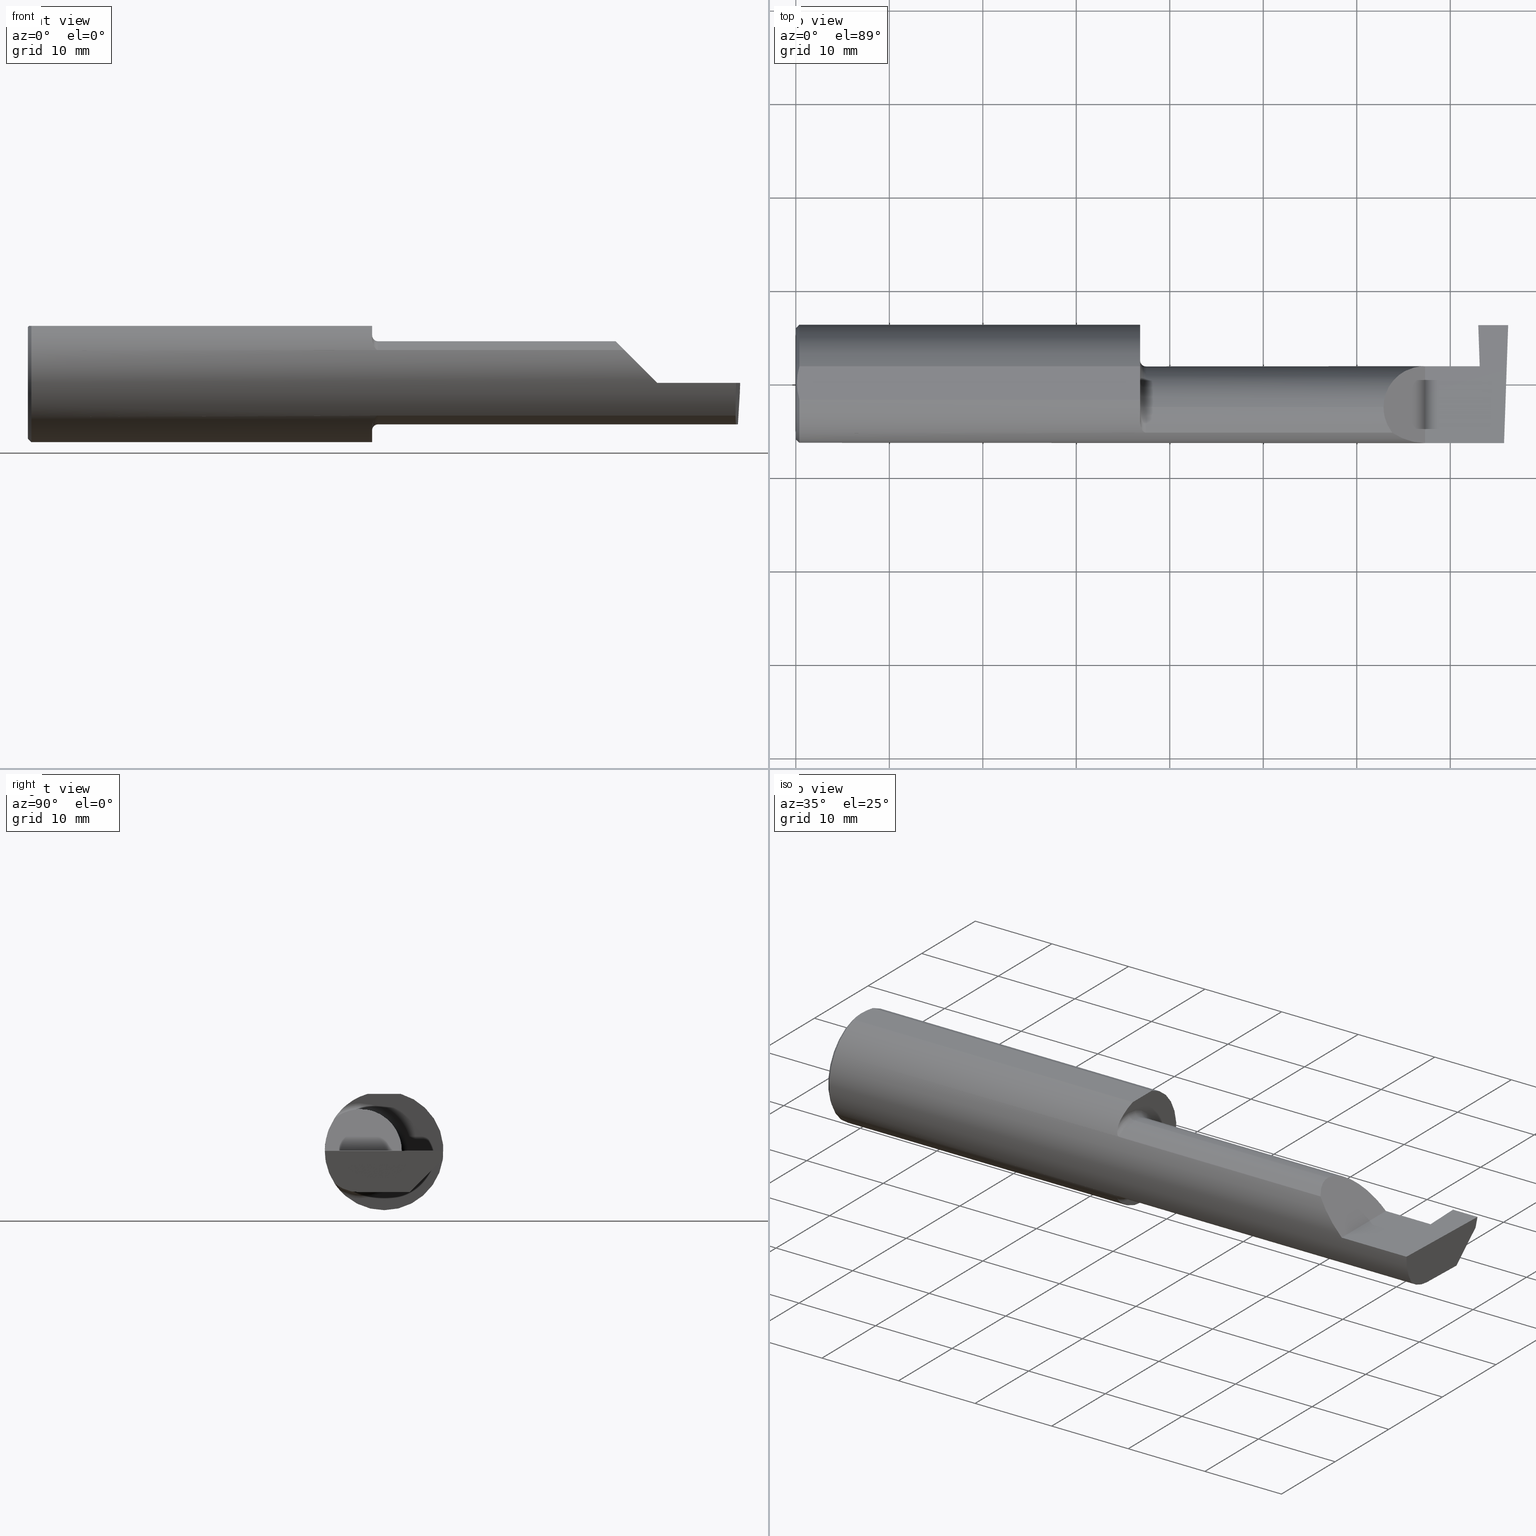
[diagram: canonical four-view strip — front | top / right | iso, engineering-drawing reading convention]
A machine part, canonical four-view strip (front | top / right | iso — engineering-drawing reading convention). The complete STEP part file that produces these views, byte-faithful:
ISO-10303-21;
HEADER;
FILE_DESCRIPTION (( 'STEP AP203' ),
    '1' );
FILE_NAME ('221547-GT125-24.STEP',
    '2024-07-22T22:48:29',
    ( '' ),
    ( '' ),
    'SwSTEP 2.0',
    'SolidWorks 2024',
    '' );
FILE_SCHEMA (( 'CONFIG_CONTROL_DESIGN' ));
ENDSEC;

DATA;
#1 = EDGE_CURVE ( 'NONE', #758, #406, #473, .T. ) ;
#2 = CALENDAR_DATE ( 2024, 22, 7 ) ;
#3 = AXIS2_PLACEMENT_3D ( 'NONE', #40, #231, #774 ) ;
#4 = ORIENTED_EDGE ( 'NONE', *, *, #428, .T. ) ;
#5 = ORIENTED_EDGE ( 'NONE', *, *, #136, .F. ) ;
#6 = APPROVAL_STATUS ( 'not_yet_approved' ) ;
#7 = ADVANCED_FACE ( 'NONE', ( #352 ), #678, .F. ) ;
#8 = PLANE ( 'NONE',  #249 ) ;
#9 = APPROVAL_STATUS ( 'not_yet_approved' ) ;
#10 = DIRECTION ( 'NONE',  ( 0.000000000000000000, 0.001218716374663524277, -0.9999992573649232330 ) ) ;
#11 = DIRECTION ( 'NONE',  ( -1.000000000000000000, -0.000000000000000000, -0.000000000000000000 ) ) ;
#12 = EDGE_LOOP ( 'NONE', ( #5, #319, #754, #285, #469 ) ) ;
#13 = DIRECTION ( 'NONE',  ( 0.000000000000000000, 0.000000000000000000, -1.000000000000000000 ) ) ;
#14 = ADVANCED_FACE ( 'NONE', ( #435 ), #251, .F. ) ;
#15 = FACE_OUTER_BOUND ( 'NONE', #353, .T. ) ;
#16 = ORIENTED_EDGE ( 'NONE', *, *, #500, .T. ) ;
#17 = B_SPLINE_CURVE_WITH_KNOTS ( 'NONE', 3,
 ( #380, #457, #759, #579, #151, #18, #387, #635, #332, #762, #214, #453 ),
 .UNSPECIFIED., .F., .F.,
 ( 4, 2, 2, 2, 2, 4 ),
 ( 1.964491429041408085E-07, 0.0001260981470478291519, 0.0002519998449527541240, 0.0005038032407626173497, 0.001007410032382343584, 0.002014623615621801908 ),
 .UNSPECIFIED. ) ;
#18 = CARTESIAN_POINT ( 'NONE',  ( 1.464302603425052585, -0.2041009206016214661, -0.1441313430770039816 ) ) ;
#19 = CARTESIAN_POINT ( 'NONE',  ( 0.009312860630924745670, 0.04712480857212029278, 0.2398500000000000354 ) ) ;
#20 = ORIENTED_EDGE ( 'NONE', *, *, #633, .T. ) ;
#21 = DIRECTION ( 'NONE',  ( -1.000000000000000000, 0.000000000000000000, 1.224646799147351482E-16 ) ) ;
#22 = VERTEX_POINT ( 'NONE', #52 ) ;
#23 = ADVANCED_FACE ( 'NONE', ( #478 ), #415, .F. ) ;
#24 = CARTESIAN_POINT ( 'NONE',  ( 2.998364291748493393, 0.2348243371481683328, -0.04599999999999999922 ) ) ;
#25 = ORIENTED_EDGE ( 'NONE', *, *, #284, .T. ) ;
#26 = AXIS2_PLACEMENT_3D ( 'NONE', #395, #458, #647 ) ;
#27 = AXIS2_PLACEMENT_3D ( 'NONE', #304, #429, #796 ) ;
#28 = DIRECTION ( 'NONE',  ( 1.000000000000000000, 0.000000000000000000, -0.000000000000000000 ) ) ;
#29 = VERTEX_POINT ( 'NONE', #129 ) ;
#30 = DIRECTION ( 'NONE',  ( 0.7071067811865473507, 8.659560562354935323E-17, 0.7071067811865476838 ) ) ;
#31 = DIRECTION ( 'NONE',  ( -1.000000000000000000, -0.000000000000000000, -0.000000000000000000 ) ) ;
#32 = EDGE_CURVE ( 'NONE', #738, #153, #733, .T. ) ;
#33 = ORIENTED_EDGE ( 'NONE', *, *, #276, .T. ) ;
#34 = CARTESIAN_POINT ( 'NONE',  ( 2.977412177158956563, -0.2496672875357696664, -0.1999314649951114686 ) ) ;
#35 = CARTESIAN_POINT ( 'NONE',  ( 0.005880636388018714231, -0.02358947477502552903, 0.2398500000000000354 ) ) ;
#36 = EDGE_CURVE ( 'NONE', #639, #343, #309, .T. ) ;
#37 = ORIENTED_EDGE ( 'NONE', *, *, #633, .F. ) ;
#38 = AXIS2_PLACEMENT_3D ( 'NONE', #550, #723, #245 ) ;
#39 = DIRECTION ( 'NONE',  ( 1.000000000000000000, 0.000000000000000000, 0.000000000000000000 ) ) ;
#40 = CARTESIAN_POINT ( 'NONE',  ( 0.01499999999999999944, 0.000000000000000000, 0.000000000000000000 ) ) ;
#41 = ORIENTED_EDGE ( 'NONE', *, *, #388, .T. ) ;
#42 = CARTESIAN_POINT ( 'NONE',  ( 2.174500000000000099, -0.2080850024789291652, -0.1382955322609665250 ) ) ;
#43 = CARTESIAN_POINT ( 'NONE',  ( 0.000000000000000000, -0.06997856814768359246, 0.2398500000000000076 ) ) ;
#44 = CIRCLE ( 'NONE', #56, 0.2498499999999999888 ) ;
#45 = ORIENTED_EDGE ( 'NONE', *, *, #1, .T. ) ;
#46 = EDGE_CURVE ( 'NONE', #192, #658, #529, .T. ) ;
#47 = CARTESIAN_POINT ( 'NONE',  ( 2.990479469570817006, 0.1058243371481679268, -0.1749999999999999889 ) ) ;
#48 = FACE_OUTER_BOUND ( 'NONE', #624, .T. ) ;
#49 = DIRECTION ( 'NONE',  ( 0.9975640529689512315, -8.501330957465244652E-05, 0.06975638319821841904 ) ) ;
#50 = ORIENTED_EDGE ( 'NONE', *, *, #677, .F. ) ;
#51 = CARTESIAN_POINT ( 'NONE',  ( 2.885036419112081862, -0.01887343476265496492, -0.1750000000000000444 ) ) ;
#52 = CARTESIAN_POINT ( 'NONE',  ( 2.982644377562602589, -0.2498499999999999610, 1.813681607540488003E-17 ) ) ;
#53 = PLANE ( 'NONE',  #27 ) ;
#54 = ADVANCED_FACE ( 'NONE', ( #368 ), #185, .T. ) ;
#55 = ORIENTED_EDGE ( 'NONE', *, *, #169, .F. ) ;
#56 = AXIS2_PLACEMENT_3D ( 'NONE', #282, #160, #95 ) ;
#57 = EDGE_LOOP ( 'NONE', ( #390, #364, #165, #270 ) ) ;
#58 = APPROVAL_ROLE ( '' ) ;
#59 = CARTESIAN_POINT ( 'NONE',  ( 1.450000000000000178, -0.1616050818046604332, 0.1905487340154980169 ) ) ;
#60 = CARTESIAN_POINT ( 'NONE',  ( 2.825000000000000178, 0.2471500000000000086, -3.306546357697639493E-19 ) ) ;
#61 = CC_DESIGN_PERSON_AND_ORGANIZATION_ASSIGNMENT ( #427, #116, ( #644 ) ) ;
#62 = ORIENTED_EDGE ( 'NONE', *, *, #626, .T. ) ;
#63 = DIRECTION ( 'NONE',  ( -1.000000000000000000, -0.000000000000000000, -0.000000000000000000 ) ) ;
#64 = AXIS2_PLACEMENT_3D ( 'NONE', #365, #371, #617 ) ;
#65 = CARTESIAN_POINT ( 'NONE',  ( 2.980479240051444378, -0.2080850024789291652, -0.1382955322609665250 ) ) ;
#66 = ORIENTED_EDGE ( 'NONE', *, *, #354, .F. ) ;
#67 = MANIFOLD_SOLID_BREP ( 'Front Angle', #80 ) ;
#68 = DATE_AND_TIME ( #432, #798 ) ;
#69 = CARTESIAN_POINT ( 'NONE',  ( 2.475000000000001421, -0.1400387324517231857, 0.1750000000000000167 ) ) ;
#70 = CARTESIAN_POINT ( 'NONE',  ( 1.474999999999999867, -0.2080850024789292485, 0.1382955322609664972 ) ) ;
#71 = CARTESIAN_POINT ( 'NONE',  ( 4.499279347985559139E-32, -0.2498499999999999610, 3.673940397442053459E-16 ) ) ;
#72 = ORIENTED_EDGE ( 'NONE', *, *, #677, .T. ) ;
#73 = EDGE_CURVE ( 'NONE', #150, #333, #114, .T. ) ;
#74 = CARTESIAN_POINT ( 'NONE',  ( 2.511704467739034552, -0.2080850024789292485, 0.1382955322609664139 ) ) ;
#75 = LINE ( 'NONE', #583, #171 ) ;
#76 = APPLICATION_CONTEXT ( 'configuration controlled 3d designs of mechanical parts and assemblies' ) ;
#77 = ORIENTED_EDGE ( 'NONE', *, *, #85, .T. ) ;
#78 = APPROVAL_DATE_TIME ( #267, #598 ) ;
#79 = DIRECTION ( 'NONE',  ( 1.000000000000000000, 0.000000000000000000, 0.000000000000000000 ) ) ;
#80 = CLOSED_SHELL ( 'NONE', ( #88, #535, #321, #96, #54, #593, #518, #571, #362, #515, #147, #763, #485, #299, #7, #740, #14, #450, #770, #23, #107, #254 ) ) ;
#81 = CARTESIAN_POINT ( 'NONE',  ( 0.01181966702888963446, 0.05862357455657472849, 0.2398500000000000631 ) ) ;
#82 = VECTOR ( 'NONE', #210, 39.37007874015748143 ) ;
#83 = ORIENTED_EDGE ( 'NONE', *, *, #492, .F. ) ;
#84 = CARTESIAN_POINT ( 'NONE',  ( 2.876037492458068279, 0.07420629955631044550, -0.04619574797784882503 ) ) ;
#85 = EDGE_CURVE ( 'NONE', #553, #350, #547, .T. ) ;
#86 = VERTEX_POINT ( 'NONE', #65 ) ;
#87 = CARTESIAN_POINT ( 'NONE',  ( 1.450000000000000178, -0.2498499999999999888, 0.2398500000000000076 ) ) ;
#88 = ADVANCED_FACE ( 'NONE', ( #315 ), #474, .T. ) ;
#89 = EDGE_LOOP ( 'NONE', ( #776, #264, #634, #311, #155 ) ) ;
#90 = CYLINDRICAL_SURFACE ( 'NONE', #255, 0.2498499999999999888 ) ;
#91 = ORIENTED_EDGE ( 'NONE', *, *, #687, .F. ) ;
#92 = CARTESIAN_POINT ( 'NONE',  ( 2.887013260303944229, 0.07439359513054549788, -0.1998782938404957410 ) ) ;
#93 = CARTESIAN_POINT ( 'NONE',  ( 0.01499999999999999944, 0.000000000000000000, -0.2498499999999999888 ) ) ;
#94 = ORIENTED_EDGE ( 'NONE', *, *, #379, .F. ) ;
#95 = DIRECTION ( 'NONE',  ( 0.000000000000000000, 0.000000000000000000, 1.000000000000000000 ) ) ;
#96 = ADVANCED_FACE ( 'NONE', ( #178 ), #681, .F. ) ;
#97 = AXIS2_PLACEMENT_3D ( 'NONE', #467, #407, #539 ) ;
#98 = CARTESIAN_POINT ( 'NONE',  ( 2.980602402804240381, -0.2354324170447328890, -0.09714751587400699551 ) ) ;
#99 = ORIENTED_EDGE ( 'NONE', *, *, #459, .T. ) ;
#100 = CARTESIAN_POINT ( 'NONE',  ( 1.474999999999999867, -0.1008499999999999536, -0.1999999999999999833 ) ) ;
#101 = CARTESIAN_POINT ( 'NONE',  ( 1.450000000000000178, 0.06997856814768360634, 0.2398500000000000076 ) ) ;
#102 = ORIENTED_EDGE ( 'NONE', *, *, #500, .F. ) ;
#103 = AXIS2_PLACEMENT_3D ( 'NONE', #570, #31, #623 ) ;
#104 = TOROIDAL_SURFACE ( 'NONE', #172, 0.1999999999999999833, 0.02499999999999993894 ) ;
#105 = LINE ( 'NONE', #651, #361 ) ;
#106 = DIRECTION ( 'NONE',  ( 1.000000000000000000, 0.000000000000000000, 0.000000000000000000 ) ) ;
#107 = ADVANCED_FACE ( 'NONE', ( #604 ), #305, .F. ) ;
#108 = ORIENTED_EDGE ( 'NONE', *, *, #218, .F. ) ;
#109 = DIRECTION ( 'NONE',  ( 1.000000000000000000, 1.870497743706911121E-16, -4.575890381050107109E-32 ) ) ;
#110 = DIRECTION ( 'NONE',  ( -1.000000000000000000, -0.000000000000000000, -0.000000000000000000 ) ) ;
#111 = ORIENTED_EDGE ( 'NONE', *, *, #708, .T. ) ;
#112 = B_SPLINE_CURVE_WITH_KNOTS ( 'NONE', 3,
 ( #725, #283, #35, #783, #471, #600 ),
 .UNSPECIFIED., .F., .F.,
 ( 4, 2, 4 ),
 ( 0.007845223120669342701, 0.008734561288375082555, 0.009623899456080820675 ),
 .UNSPECIFIED. ) ;
#113 = DIRECTION ( 'NONE',  ( -1.000000000000000000, -0.000000000000000000, -0.000000000000000000 ) ) ;
#114 = LINE ( 'NONE', #613, #578 ) ;
#115 = ORIENTED_EDGE ( 'NONE', *, *, #727, .T. ) ;
#116 = PERSON_AND_ORGANIZATION_ROLE ( 'design_owner' ) ;
#117 = EDGE_CURVE ( 'NONE', #781, #548, #277, .T. ) ;
#118 = CARTESIAN_POINT ( 'NONE',  ( 1.474999999999999867, -0.2080850024789292485, 0.1382955322609664972 ) ) ;
#119 = AXIS2_PLACEMENT_3D ( 'NONE', #175, #125, #737 ) ;
#120 = FACE_OUTER_BOUND ( 'NONE', #162, .T. ) ;
#121 = DIRECTION ( 'NONE',  ( 0.06975643500179386225, 0.001215747646129009549, -0.9975633121428941763 ) ) ;
#122 = COORDINATED_UNIVERSAL_TIME_OFFSET ( 8, 0, .BEHIND. ) ;
#123 = DIRECTION ( 'NONE',  ( -1.000000000000000000, -0.000000000000000000, -0.000000000000000000 ) ) ;
#124 = EDGE_CURVE ( 'NONE', #22, #259, #161, .T. ) ;
#125 = DIRECTION ( 'NONE',  ( 1.000000000000000000, 0.000000000000000000, 0.000000000000000000 ) ) ;
#126 = ORIENTED_EDGE ( 'NONE', *, *, #472, .T. ) ;
#127 = APPLICATION_PROTOCOL_DEFINITION ( 'international standard', 'config_control_design', 1994, #760 ) ;
#128 = CARTESIAN_POINT ( 'NONE',  ( 2.885053225427432810, 0.1783354039560729742, -0.1750000000000000444 ) ) ;
#129 = CARTESIAN_POINT ( 'NONE',  ( 2.880037608447156394, 0.07414999999999993818, 7.345577941662580874E-18 ) ) ;
#130 = APPROVAL_ROLE ( '' ) ;
#131 = FACE_OUTER_BOUND ( 'NONE', #227, .T. ) ;
#132 = LINE ( 'NONE', #190, #451 ) ;
#133 = AXIS2_PLACEMENT_3D ( 'NONE', #430, #359, #542 ) ;
#134 = CIRCLE ( 'NONE', #212, 0.02499999999999993894 ) ;
#135 = CARTESIAN_POINT ( 'NONE',  ( 3.000000000000000444, -0.1008499999999999813, -0.1749999999999999889 ) ) ;
#136 = EDGE_CURVE ( 'NONE', #781, #266, #374, .T. ) ;
#137 = ORIENTED_EDGE ( 'NONE', *, *, #687, .T. ) ;
#138 = CARTESIAN_POINT ( 'NONE',  ( 2.650000000000000355, 0.07414999999999997982, 4.286263797015727350E-17 ) ) ;
#139 = CARTESIAN_POINT ( 'NONE',  ( 0.005899890343961325216, 0.02378560009989246285, 0.2398500000000000076 ) ) ;
#140 = VECTOR ( 'NONE', #109, 39.37007874015748143 ) ;
#141 = ORIENTED_EDGE ( 'NONE', *, *, #582, .F. ) ;
#142 = FACE_OUTER_BOUND ( 'NONE', #57, .T. ) ;
#143 = CARTESIAN_POINT ( 'NONE',  ( 2.980479240051444378, -0.2080850024789291652, -0.1382955322609665250 ) ) ;
#144 = LOCAL_TIME ( 15, 48, 29.00000000000000000, #329 ) ;
#145 = VERTEX_POINT ( 'NONE', #524 ) ;
#146 = FACE_OUTER_BOUND ( 'NONE', #331, .T. ) ;
#147 = ADVANCED_FACE ( 'NONE', ( #15 ), #8, .F. ) ;
#148 = AXIS2_PLACEMENT_3D ( 'NONE', #505, #11, #258 ) ;
#149 = VECTOR ( 'NONE', #265, 39.37007874015748143 ) ;
#150 = VERTEX_POINT ( 'NONE', #217 ) ;
#151 = CARTESIAN_POINT ( 'NONE',  ( 1.467611663768900065, -0.2061921161193830399, -0.1411075319999376410 ) ) ;
#152 = CC_DESIGN_PERSON_AND_ORGANIZATION_ASSIGNMENT ( #313, #795, ( #691 ) ) ;
#153 = VERTEX_POINT ( 'NONE', #702 ) ;
#154 = CARTESIAN_POINT ( 'NONE',  ( 3.000000000000000444, -0.2500000000000000555, 0.000000000000000000 ) ) ;
#155 = ORIENTED_EDGE ( 'NONE', *, *, #652, .F. ) ;
#156 = DIRECTION ( 'NONE',  ( 0.000000000000000000, 0.000000000000000000, 1.000000000000000000 ) ) ;
#157 = CARTESIAN_POINT ( 'NONE',  ( 0.004999999999999748569, 0.01185123536186986556, 0.2398500000000000354 ) ) ;
#158 = VERTEX_POINT ( 'NONE', #222 ) ;
#159 = EDGE_CURVE ( 'NONE', #266, #29, #462, .T. ) ;
#160 = DIRECTION ( 'NONE',  ( -1.000000000000000000, -0.000000000000000000, -0.000000000000000000 ) ) ;
#161 = LINE ( 'NONE', #71, #223 ) ;
#162 = EDGE_LOOP ( 'NONE', ( #751, #357, #45, #274, #41, #764 ) ) ;
#163 = DIRECTION ( 'NONE',  ( 0.000000000000000000, 0.000000000000000000, 1.000000000000000000 ) ) ;
#164 = DIRECTION ( 'NONE',  ( -1.000000000000000000, -0.000000000000000000, -0.000000000000000000 ) ) ;
#165 = ORIENTED_EDGE ( 'NONE', *, *, #179, .F. ) ;
#166 = DIRECTION ( 'NONE',  ( 1.000000000000000000, -0.000000000000000000, -0.000000000000000000 ) ) ;
#167 = LOCAL_TIME ( 15, 48, 29.00000000000000000, #436 ) ;
#168 = CARTESIAN_POINT ( 'NONE',  ( 1.450000000000000178, -0.1665641037263009272, 0.1863429692936361126 ) ) ;
#169 = EDGE_CURVE ( 'NONE', #170, #378, #369, .T. ) ;
#170 = VERTEX_POINT ( 'NONE', #318 ) ;
#171 = VECTOR ( 'NONE', #200, 39.37007874015748854 ) ;
#172 = AXIS2_PLACEMENT_3D ( 'NONE', #296, #239, #465 ) ;
#173 = LINE ( 'NONE', #595, #780 ) ;
#174 = CARTESIAN_POINT ( 'NONE',  ( 1.452968662030528657, -0.1849684355203377595, 0.1680843977756267538 ) ) ;
#175 = CARTESIAN_POINT ( 'NONE',  ( 1.450000000000000178, 0.000000000000000000, 0.000000000000000000 ) ) ;
#176 = FACE_OUTER_BOUND ( 'NONE', #12, .T. ) ;
#177 = CARTESIAN_POINT ( 'NONE',  ( 2.885044364828742047, 0.07436327552395198548, -0.1750000000000000167 ) ) ;
#178 = FACE_OUTER_BOUND ( 'NONE', #608, .T. ) ;
#179 = EDGE_CURVE ( 'NONE', #460, #209, #641, .T. ) ;
#180 = VERTEX_POINT ( 'NONE', #93 ) ;
#181 = CARTESIAN_POINT ( 'NONE',  ( 1.451849548162864600, -0.1805300287242674606, 0.1728462070311780341 ) ) ;
#182 = DIRECTION ( 'NONE',  ( -1.000000000000000000, -0.000000000000000000, -0.000000000000000000 ) ) ;
#183 = ORIENTED_EDGE ( 'NONE', *, *, #777, .F. ) ;
#184 = EDGE_CURVE ( 'NONE', #658, #553, #75, .T. ) ;
#185 = CONICAL_SURFACE ( 'NONE', #133, 0.2498499999999999888, 0.7853981633974485010 ) ;
#186 = VECTOR ( 'NONE', #537, 39.37007874015748143 ) ;
#187 = DIRECTION ( 'NONE',  ( 8.522090287129319196E-05, 0.9999999963686987403, -2.446351747218456217E-16 ) ) ;
#188 = ORIENTED_EDGE ( 'NONE', *, *, #46, .T. ) ;
#189 = PERSON_AND_ORGANIZATION_ROLE ( 'classification_officer' ) ;
#190 = CARTESIAN_POINT ( 'NONE',  ( 2.650000000000000355, -0.2500000000000000555, 4.286263797015727350E-17 ) ) ;
#191 = DIRECTION ( 'NONE',  ( -0.000000000000000000, 2.446352684939718220E-16, 1.000000000000000000 ) ) ;
#192 = VERTEX_POINT ( 'NONE', #685 ) ;
#193 =( BOUNDED_CURVE ( )  B_SPLINE_CURVE ( 3, ( #143, #98, #689, #327 ),
 .UNSPECIFIED., .F., .T. ) 
 B_SPLINE_CURVE_WITH_KNOTS ( ( 4, 4 ),
 ( 0.05713034791898994463, 0.6418805321923491958 ),
 .UNSPECIFIED. ) 
 CURVE ( )  GEOMETRIC_REPRESENTATION_ITEM ( )  RATIONAL_B_SPLINE_CURVE ( ( 1.000000000000000000, 0.9717080070095445166, 0.9717080070095445166, 1.000000000000000000 ) ) 
 REPRESENTATION_ITEM ( '' )  );
#194 = DIRECTION ( 'NONE',  ( 1.000000000000000000, 0.000000000000000000, 0.000000000000000000 ) ) ;
#195 = FACE_OUTER_BOUND ( 'NONE', #233, .T. ) ;
#196 = EDGE_CURVE ( 'NONE', #718, #360, #220, .T. ) ;
#197 = CARTESIAN_POINT ( 'NONE',  ( 1.450000000000000178, 0.000000000000000000, 0.000000000000000000 ) ) ;
#198 = ORIENTED_EDGE ( 'NONE', *, *, #626, .F. ) ;
#199 = AXIS2_PLACEMENT_3D ( 'NONE', #797, #248, #566 ) ;
#200 = DIRECTION ( 'NONE',  ( 0.04426438787458265856, 0.001217521851804606722, -0.9990191097304539358 ) ) ;
#201 = ORIENTED_EDGE ( 'NONE', *, *, #73, .T. ) ;
#202 = CARTESIAN_POINT ( 'NONE',  ( 1.450000000000000178, -0.1008499999999999674, 0.000000000000000000 ) ) ;
#203 = LINE ( 'NONE', #87, #592 ) ;
#204 = DIRECTION ( 'NONE',  ( -0.9990483607430196145, 0.03488753751661385211, 0.02617694830785935456 ) ) ;
#205 = AXIS2_PLACEMENT_3D ( 'NONE', #536, #292, #163 ) ;
#206 = ORIENTED_EDGE ( 'NONE', *, *, #492, .T. ) ;
#207 = EDGE_CURVE ( 'NONE', #86, #219, #193, .T. ) ;
#208 = CARTESIAN_POINT ( 'NONE',  ( 2.982660284539054629, -0.2493944837933358694, 2.123502703737254632E-18 ) ) ;
#209 = VERTEX_POINT ( 'NONE', #496 ) ;
#210 = DIRECTION ( 'NONE',  ( -1.860109918781713521E-16, 0.9999992573649232330, 0.001218716374663524060 ) ) ;
#211 = VECTOR ( 'NONE', #106, 39.37007874015748143 ) ;
#212 = AXIS2_PLACEMENT_3D ( 'NONE', #625, #507, #261 ) ;
#213 = ORIENTED_EDGE ( 'NONE', *, *, #614, .F. ) ;
#214 = CARTESIAN_POINT ( 'NONE',  ( 1.450000000000000400, -0.1716188362992556171, -0.1820560320165480195 ) ) ;
#215 = ORIENTED_EDGE ( 'NONE', *, *, #525, .T. ) ;
#216 = DIRECTION ( 'NONE',  ( -1.000000000000000000, -0.000000000000000000, -0.000000000000000000 ) ) ;
#217 = CARTESIAN_POINT ( 'NONE',  ( 2.885029432995152465, -0.1008500000000000091, -0.1749999999999999889 ) ) ;
#218 = EDGE_CURVE ( 'NONE', #378, #337, #750, .T. ) ;
#219 = VERTEX_POINT ( 'NONE', #322 ) ;
#220 = B_SPLINE_CURVE_WITH_KNOTS ( 'NONE', 3,
 ( #280, #81, #19, #139, #157, #706 ),
 .UNSPECIFIED., .F., .F.,
 ( 4, 2, 4 ),
 ( 0.006064768674679249863, 0.006954995897674296282, 0.007845223120669342701 ),
 .UNSPECIFIED. ) ;
#221 = CARTESIAN_POINT ( 'NONE',  ( 2.874000000000000110, 0.07414987299205305638, -0.0002108382441793307837 ) ) ;
#222 = CARTESIAN_POINT ( 'NONE',  ( 2.475000000000001421, -0.1008499999999999674, 0.1749999999999999889 ) ) ;
#223 = VECTOR ( 'NONE', #753, 39.37007874015748143 ) ;
#224 = ORIENTED_EDGE ( 'NONE', *, *, #414, .T. ) ;
#225 = PLANE ( 'NONE',  #755 ) ;
#226 = CARTESIAN_POINT ( 'NONE',  ( 1.450000000000000178, -0.1008499999999999674, 0.000000000000000000 ) ) ;
#227 = EDGE_LOOP ( 'NONE', ( #94, #711, #4, #323 ) ) ;
#228 = EDGE_CURVE ( 'NONE', #153, #150, #680, .T. ) ;
#229 = LINE ( 'NONE', #34, #509 ) ;
#230 =( GEOMETRIC_REPRESENTATION_CONTEXT ( 3 ) GLOBAL_UNCERTAINTY_ASSIGNED_CONTEXT ( ( #588 ) ) GLOBAL_UNIT_ASSIGNED_CONTEXT ( ( #605, #672, #549 ) ) REPRESENTATION_CONTEXT ( 'NONE', 'WORKASPACE' ) );
#231 = DIRECTION ( 'NONE',  ( -1.000000000000000000, -0.000000000000000000, -0.000000000000000000 ) ) ;
#232 = PRODUCT_DEFINITION_SHAPE ( 'NONE', 'NONE',  #691 ) ;
#233 = EDGE_LOOP ( 'NONE', ( #446, #393, #514, #50, #670, #306 ) ) ;
#234 = LINE ( 'NONE', #470, #621 ) ;
#235 = CARTESIAN_POINT ( 'NONE',  ( 2.874000000000000110, 0.07414987299205305638, -0.0002108382441793307837 ) ) ;
#236 = APPROVAL ( #481, 'UNSPECIFIED' ) ;
#237 = DIRECTION ( 'NONE',  ( -0.03487823687994804495, 0.9993915692020550745, -2.444309580554224040E-16 ) ) ;
#238 = DIRECTION ( 'NONE',  ( -0.03487823687206274836, -0.001217974870087560951, 0.9993908270190957621 ) ) ;
#239 = DIRECTION ( 'NONE',  ( -1.000000000000000000, -0.000000000000000000, -0.000000000000000000 ) ) ;
#240 = DIRECTION ( 'NONE',  ( 0.000000000000000000, 0.000000000000000000, 1.000000000000000000 ) ) ;
#241 = VERTEX_POINT ( 'NONE', #619 ) ;
#242 = CARTESIAN_POINT ( 'NONE',  ( 1.450000000000000178, 0.07414999999999997982, 1.898202538678394254E-16 ) ) ;
#243 = CARTESIAN_POINT ( 'NONE',  ( 0.000000000000000000, 2.967931517733610643E-17, 0.2348499999999999754 ) ) ;
#244 = EDGE_CURVE ( 'NONE', #209, #333, #668, .T. ) ;
#245 = DIRECTION ( 'NONE',  ( 0.000000000000000000, 0.000000000000000000, 1.000000000000000000 ) ) ;
#246 = VERTEX_POINT ( 'NONE', #501 ) ;
#247 = COORDINATED_UNIVERSAL_TIME_OFFSET ( 8, 0, .BEHIND. ) ;
#248 = DIRECTION ( 'NONE',  ( 0.9990198516376381788, -5.394573431702560148E-05, 0.04426435500229557868 ) ) ;
#249 = AXIS2_PLACEMENT_3D ( 'NONE', #766, #256, #338 ) ;
#250 = APPROVAL_DATE_TIME ( #307, #713 ) ;
#251 = PLANE ( 'NONE',  #787 ) ;
#252 = EDGE_LOOP ( 'NONE', ( #771, #281, #418, #419 ) ) ;
#253 = PERSON_AND_ORGANIZATION ( #747, #636 ) ;
#254 = ADVANCED_FACE ( 'NONE', ( #749 ), #440, .F. ) ;
#255 = AXIS2_PLACEMENT_3D ( 'NONE', #335, #216, #156 ) ;
#256 = DIRECTION ( 'NONE',  ( 1.000000000000000000, 0.000000000000000000, 0.000000000000000000 ) ) ;
#257 = DATE_AND_TIME ( #676, #389 ) ;
#258 = DIRECTION ( 'NONE',  ( 0.000000000000000000, 0.000000000000000000, 1.000000000000000000 ) ) ;
#259 = VERTEX_POINT ( 'NONE', #382 ) ;
#260 = CARTESIAN_POINT ( 'NONE',  ( 2.511704467739034552, -0.2080850024789292485, 0.1382955322609664139 ) ) ;
#261 = DIRECTION ( 'NONE',  ( 0.000000000000000000, 0.000000000000000000, -1.000000000000000000 ) ) ;
#262 = DIRECTION ( 'NONE',  ( 1.000000000000000000, 0.000000000000000000, 0.000000000000000000 ) ) ;
#263 = EDGE_CURVE ( 'NONE', #150, #246, #376, .T. ) ;
#264 = ORIENTED_EDGE ( 'NONE', *, *, #228, .F. ) ;
#265 = DIRECTION ( 'NONE',  ( 0.03489949670249940794, 0.9993908270190957621, -4.452728370532699971E-18 ) ) ;
#266 = VERTEX_POINT ( 'NONE', #482 ) ;
#267 = DATE_AND_TIME ( #391, #144 ) ;
#268 = DIRECTION ( 'NONE',  ( -0.03432699337968036363, -0.2586665114180216052, -0.9653565628286482347 ) ) ;
#269 = SECURITY_CLASSIFICATION ( '', '', #559 ) ;
#270 = ORIENTED_EDGE ( 'NONE', *, *, #640, .T. ) ;
#271 = LINE ( 'NONE', #696, #695 ) ;
#272 = AXIS2_PLACEMENT_3D ( 'NONE', #794, #484, #606 ) ;
#273 = AXIS2_PLACEMENT_3D ( 'NONE', #664, #113, #356 ) ;
#274 = ORIENTED_EDGE ( 'NONE', *, *, #290, .T. ) ;
#275 = CYLINDRICAL_SURFACE ( 'NONE', #491, 0.1749999999999999889 ) ;
#276 = EDGE_CURVE ( 'NONE', #506, #192, #421, .T. ) ;
#277 = LINE ( 'NONE', #521, #336 ) ;
#278 = ORIENTED_EDGE ( 'NONE', *, *, #346, .F. ) ;
#279 = DIRECTION ( 'NONE',  ( -1.000000000000000000, -0.000000000000000000, -0.000000000000000000 ) ) ;
#280 = CARTESIAN_POINT ( 'NONE',  ( 0.01499999999999998036, 0.06997856814768359246, 0.2398500000000000076 ) ) ;
#281 = ORIENTED_EDGE ( 'NONE', *, *, #290, .F. ) ;
#282 = CARTESIAN_POINT ( 'NONE',  ( 0.01499999999999999944, 0.000000000000000000, 0.000000000000000000 ) ) ;
#283 = CARTESIAN_POINT ( 'NONE',  ( 0.004999999999999737293, -0.01183939972798748325, 0.2398500000000000631 ) ) ;
#284 = EDGE_CURVE ( 'NONE', #246, #658, #650, .T. ) ;
#285 = ORIENTED_EDGE ( 'NONE', *, *, #699, .T. ) ;
#286 = AXIS2_PLACEMENT_3D ( 'NONE', #202, #123, #612 ) ;
#287 = DIRECTION ( 'NONE',  ( -1.000000000000000000, -0.000000000000000000, -0.000000000000000000 ) ) ;
#288 = CARTESIAN_POINT ( 'NONE',  ( 1.458182335268384699, -0.1972192205116131691, 0.1535061413537209540 ) ) ;
#289 = ORIENTED_EDGE ( 'NONE', *, *, #244, .T. ) ;
#290 = EDGE_CURVE ( 'NONE', #406, #145, #656, .T. ) ;
#291 = AXIS2_PLACEMENT_3D ( 'NONE', #420, #302, #194 ) ;
#292 = DIRECTION ( 'NONE',  ( -1.000000000000000000, -0.000000000000000000, -0.000000000000000000 ) ) ;
#293 = CARTESIAN_POINT ( 'NONE',  ( 2.874689495973013820, 0.07413112468343002748, -0.01577237022675150382 ) ) ;
#294 = EDGE_LOOP ( 'NONE', ( #20, #463, #697, #533 ) ) ;
#295 = PLANE ( 'NONE',  #97 ) ;
#296 = CARTESIAN_POINT ( 'NONE',  ( 1.474999999999999867, -0.1008499999999999674, 0.000000000000000000 ) ) ;
#297 = CARTESIAN_POINT ( 'NONE',  ( 2.874000000000000110, -0.1008499999999999674, 0.000000000000000000 ) ) ;
#298 = CARTESIAN_POINT ( 'NONE',  ( 1.474999999999999867, -0.1008499999999999536, -0.1749999999999999889 ) ) ;
#299 = ADVANCED_FACE ( 'NONE', ( #477 ), #468, .T. ) ;
#300 = CARTESIAN_POINT ( 'NONE',  ( 0.000000000000000000, 0.000000000000000000, -0.2348499999999999754 ) ) ;
#301 = CARTESIAN_POINT ( 'NONE',  ( 2.882659707296773011, 0.1742304939701101174, -0.1750000000000000444 ) ) ;
#302 = DIRECTION ( 'NONE',  ( 0.000000000000000000, 0.000000000000000000, 1.000000000000000000 ) ) ;
#303 = CIRCLE ( 'NONE', #444, 0.1749999999999999889 ) ;
#304 = CARTESIAN_POINT ( 'NONE',  ( 1.450000000000000178, 0.2741499999999998938, 0.000000000000000000 ) ) ;
#305 = PLANE ( 'NONE',  #199 ) ;
#306 = ORIENTED_EDGE ( 'NONE', *, *, #708, .F. ) ;
#307 = DATE_AND_TIME ( #2, #167 ) ;
#308 = APPROVAL_PERSON_ORGANIZATION ( #552, #713, #58 ) ;
#309 = LINE ( 'NONE', #301, #516 ) ;
#310 = EDGE_CURVE ( 'NONE', #180, #456, #409, .T. ) ;
#311 = ORIENTED_EDGE ( 'NONE', *, *, #614, .T. ) ;
#312 = AXIS2_PLACEMENT_3D ( 'NONE', #667, #164, #596 ) ;
#313 = PERSON_AND_ORGANIZATION ( #747, #636 ) ;
#314 = VECTOR ( 'NONE', #684, 39.37007874015748143 ) ;
#315 = FACE_OUTER_BOUND ( 'NONE', #519, .T. ) ;
#316 = ORIENTED_EDGE ( 'NONE', *, *, #560, .T. ) ;
#317 = EDGE_CURVE ( 'NONE', #337, #718, #660, .T. ) ;
#318 = CARTESIAN_POINT ( 'NONE',  ( 1.450000000000000178, -0.1008499999999999536, -0.1999999999999999833 ) ) ;
#319 = ORIENTED_EDGE ( 'NONE', *, *, #511, .F. ) ;
#320 = LINE ( 'NONE', #42, #480 ) ;
#321 = ADVANCED_FACE ( 'NONE', ( #48 ), #104, .F. ) ;
#322 = CARTESIAN_POINT ( 'NONE',  ( 2.982632426700502215, -0.2498495826666993769, -0.0004566631977452191267 ) ) ;
#323 = ORIENTED_EDGE ( 'NONE', *, *, #398, .F. ) ;
#324 = CARTESIAN_POINT ( 'NONE',  ( 2.650000000000000355, 0.07414999999999997982, 4.286263797015727350E-17 ) ) ;
#325 = AXIS2_PLACEMENT_3D ( 'NONE', #698, #79, #13 ) ;
#326 = CC_DESIGN_PERSON_AND_ORGANIZATION_ASSIGNMENT ( #745, #189, ( #269 ) ) ;
#327 = CARTESIAN_POINT ( 'NONE',  ( 2.982632426700502215, -0.2498495826666993769, -0.0004566631977452191267 ) ) ;
#328 = ORIENTED_EDGE ( 'NONE', *, *, #244, .F. ) ;
#329 = COORDINATED_UNIVERSAL_TIME_OFFSET ( 8, 0, .BEHIND. ) ;
#330 = PLANE ( 'NONE',  #347 ) ;
#331 = EDGE_LOOP ( 'NONE', ( #339, #584, #522, #510, #358 ) ) ;
#332 = CARTESIAN_POINT ( 'NONE',  ( 1.456147634408387903, -0.1932733126899460752, -0.1584637047788196307 ) ) ;
#333 = VERTEX_POINT ( 'NONE', #298 ) ;
#334 = EDGE_CURVE ( 'NONE', #406, #460, #757, .T. ) ;
#335 = CARTESIAN_POINT ( 'NONE',  ( 0.000000000000000000, 0.000000000000000000, 0.000000000000000000 ) ) ;
#336 = VECTOR ( 'NONE', #627, 39.37007874015748143 ) ;
#337 = VERTEX_POINT ( 'NONE', #101 ) ;
#338 = DIRECTION ( 'NONE',  ( 0.000000000000000000, 0.000000000000000000, -1.000000000000000000 ) ) ;
#339 = ORIENTED_EDGE ( 'NONE', *, *, #342, .T. ) ;
#340 = DIRECTION ( 'NONE',  ( -1.000000000000000000, -1.871990241922592797E-16, 1.224646799147351482E-16 ) ) ;
#341 = CARTESIAN_POINT ( 'NONE',  ( 2.873910470583536103, 0.2476916017116004842, 0.002021285105159276521 ) ) ;
#342 = EDGE_CURVE ( 'NONE', #456, #758, #408, .T. ) ;
#343 = VERTEX_POINT ( 'NONE', #586 ) ;
#344 = CC_DESIGN_APPROVAL ( #713, ( #610 ) ) ;
#345 = ORIENTED_EDGE ( 'NONE', *, *, #196, .F. ) ;
#346 = EDGE_CURVE ( 'NONE', #360, #456, #112, .T. ) ;
#347 = AXIS2_PLACEMENT_3D ( 'NONE', #154, #688, #21 ) ;
#348 = CARTESIAN_POINT ( 'NONE',  ( 2.980931506555613453, -0.1771157075472509779, -0.1623092683844330475 ) ) ;
#349 = CARTESIAN_POINT ( 'NONE',  ( 2.875372681961405608, 0.07204909126152565790, -0.03119400421533637113 ) ) ;
#350 = VERTEX_POINT ( 'NONE', #177 ) ;
#351 = CARTESIAN_POINT ( 'NONE',  ( 2.650000000000000355, -0.2498499999999999610, 4.286263797015727350E-17 ) ) ;
#352 = FACE_OUTER_BOUND ( 'NONE', #551, .T. ) ;
#353 = EDGE_LOOP ( 'NONE', ( #126, #486 ) ) ;
#354 = EDGE_CURVE ( 'NONE', #442, #431, #385, .T. ) ;
#355 = LENGTH_MEASURE_WITH_UNIT ( LENGTH_MEASURE( 0.02539999999999999897 ), #679 );
#356 = DIRECTION ( 'NONE',  ( 0.000000000000000000, 0.000000000000000000, 1.000000000000000000 ) ) ;
#357 = ORIENTED_EDGE ( 'NONE', *, *, #546, .F. ) ;
#358 = ORIENTED_EDGE ( 'NONE', *, *, #346, .T. ) ;
#359 = DIRECTION ( 'NONE',  ( 1.000000000000000000, 0.000000000000000000, 0.000000000000000000 ) ) ;
#360 = VERTEX_POINT ( 'NONE', #603 ) ;
#361 = VECTOR ( 'NONE', #30, 39.37007874015748143 ) ;
#362 = ADVANCED_FACE ( 'NONE', ( #131 ), #563, .F. ) ;
#363 = CARTESIAN_POINT ( 'NONE',  ( 2.885047045968829327, -2.795938602588532884, -0.1785364286363248232 ) ) ;
#364 = ORIENTED_EDGE ( 'NONE', *, *, #441, .T. ) ;
#365 = CARTESIAN_POINT ( 'NONE',  ( 2.650000000000000355, -0.2500000000000000555, 4.286263797015727350E-17 ) ) ;
#366 = LINE ( 'NONE', #128, #630 ) ;
#367 = CC_DESIGN_DATE_AND_TIME_ASSIGNMENT ( #68, #616, ( #269 ) ) ;
#368 = FACE_OUTER_BOUND ( 'NONE', #575, .T. ) ;
#369 = CIRCLE ( 'NONE', #26, 0.1999999999999999833 ) ;
#370 = PERSON_AND_ORGANIZATION ( #747, #636 ) ;
#371 = DIRECTION ( 'NONE',  ( -0.7071067811865495711, 0.000000000000000000, -0.7071067811865454633 ) ) ;
#372 = VECTOR ( 'NONE', #63, 39.37007874015748143 ) ;
#373 = CARTESIAN_POINT ( 'NONE',  ( 0.01499999999999999944, -0.06997856814768359246, 0.2398500000000000076 ) ) ;
#374 = LINE ( 'NONE', #341, #721 ) ;
#375 = ORIENTED_EDGE ( 'NONE', *, *, #263, .F. ) ;
#376 =( BOUNDED_CURVE ( )  B_SPLINE_CURVE ( 3, ( #591, #51, #544, #655 ),
 .UNSPECIFIED., .F., .T. ) 
 B_SPLINE_CURVE_WITH_KNOTS ( ( 4, 4 ),
 ( 3.140373936913444908, 4.443983221546777607 ),
 .UNSPECIFIED. ) 
 CURVE ( )  GEOMETRIC_REPRESENTATION_ITEM ( )  RATIONAL_B_SPLINE_CURVE ( ( 1.000000000000000000, 0.8633269052189371795, 0.8633269052189371795, 1.000000000000000000 ) ) 
 REPRESENTATION_ITEM ( '' )  );
#377 = CARTESIAN_POINT ( 'NONE',  ( 2.994767799596354418, 0.2473327124642303587, -0.1999314649951115241 ) ) ;
#378 = VERTEX_POINT ( 'NONE', #498 ) ;
#379 = EDGE_CURVE ( 'NONE', #609, #158, #454, .T. ) ;
#380 = CARTESIAN_POINT ( 'NONE',  ( 1.474999999999999867, -0.2080850024789291375, -0.1382955322609665805 ) ) ;
#381 = CC_DESIGN_APPROVAL ( #598, ( #269 ) ) ;
#382 = CARTESIAN_POINT ( 'NONE',  ( 2.650000000000000355, -0.2498499999999999610, 4.286263797015727350E-17 ) ) ;
#383 = EDGE_LOOP ( 'NONE', ( #401, #452, #102, #602, #83, #597, #425 ) ) ;
#384 = CARTESIAN_POINT ( 'NONE',  ( 1.450000000000000178, -0.1008499999999999674, 0.000000000000000000 ) ) ;
#385 = CIRCLE ( 'NONE', #273, 0.2348499999999999754 ) ;
#386 = ORIENTED_EDGE ( 'NONE', *, *, #398, .T. ) ;
#387 = CARTESIAN_POINT ( 'NONE',  ( 1.462579853086618975, -0.2024300470081735470, -0.1464774911482684128 ) ) ;
#388 = EDGE_CURVE ( 'NONE', #145, #170, #736, .T. ) ;
#389 = LOCAL_TIME ( 15, 48, 29.00000000000000000, #122 ) ;
#390 = ORIENTED_EDGE ( 'NONE', *, *, #379, .T. ) ;
#391 = CALENDAR_DATE ( 2024, 22, 7 ) ;
#392 = CARTESIAN_POINT ( 'NONE',  ( 2.998041052908566595, 0.2295359730721147906, -0.05128836407605352060 ) ) ;
#393 = ORIENTED_EDGE ( 'NONE', *, *, #184, .F. ) ;
#394 = DIRECTION ( 'NONE',  ( -0.04317993108637931121, -0.7064472710512011977, -0.7064472710511988662 ) ) ;
#395 = CARTESIAN_POINT ( 'NONE',  ( 1.450000000000000178, -0.1008499999999999674, 0.000000000000000000 ) ) ;
#396 = AXIS2_PLACEMENT_3D ( 'NONE', #197, #262, #437 ) ;
#397 = EDGE_LOOP ( 'NONE', ( #198, #637, #316, #649, #278 ) ) ;
#398 = EDGE_CURVE ( 'NONE', #158, #506, #565, .T. ) ;
#399 = CARTESIAN_POINT ( 'NONE',  ( 1.474999999999999867, -0.1008499999999999674, 0.000000000000000000 ) ) ;
#400 = DIRECTION ( 'NONE',  ( -0.04274495231316564892, 0.2585824888546562894, 0.9650429863531866381 ) ) ;
#401 = ORIENTED_EDGE ( 'NONE', *, *, #632, .T. ) ;
#402 = VECTOR ( 'NONE', #238, 39.37007874015748854 ) ;
#403 = CARTESIAN_POINT ( 'NONE',  ( 2.980479240051444378, -0.2080850024789291652, -0.1382955322609665250 ) ) ;
#404 = PRODUCT_RELATED_PRODUCT_CATEGORY ( 'detail', '', ( #644 ) ) ;
#405 = CARTESIAN_POINT ( 'NONE',  ( 1.450000000000000178, -0.1616050818046604332, 0.1905487340154980169 ) ) ;
#406 = VERTEX_POINT ( 'NONE', #59 ) ;
#407 = DIRECTION ( 'NONE',  ( 0.000000000000000000, -0.7071067811865463515, 0.7071067811865486830 ) ) ;
#408 = LINE ( 'NONE', #43, #186 ) ;
#409 = CIRCLE ( 'NONE', #3, 0.2498499999999999888 ) ;
#410 = ORIENTED_EDGE ( 'NONE', *, *, #459, .F. ) ;
#411 = CIRCLE ( 'NONE', #555, 0.2348499999999999754 ) ;
#412 = CARTESIAN_POINT ( 'NONE',  ( 0.01499999999999998036, 0.06997856814768359246, 0.2398500000000000076 ) ) ;
#413 = CARTESIAN_POINT ( 'NONE',  ( 1.471718393013769166, -0.2077830475237242291, 0.1387513848711936504 ) ) ;
#414 = EDGE_CURVE ( 'NONE', #150, #350, #366, .T. ) ;
#415 = PLANE ( 'NONE',  #704 ) ;
#416 = APPROVAL_ROLE ( '' ) ;
#417 = CARTESIAN_POINT ( 'NONE',  ( 1.456159563508734545, -0.1933019864360849827, 0.1584298865564831571 ) ) ;
#418 = ORIENTED_EDGE ( 'NONE', *, *, #334, .T. ) ;
#419 = ORIENTED_EDGE ( 'NONE', *, *, #179, .T. ) ;
#420 = CARTESIAN_POINT ( 'NONE',  ( 0.000000000000000000, 0.000000000000000000, 0.000000000000000000 ) ) ;
#421 = LINE ( 'NONE', #242, #211 ) ;
#422 = DIRECTION ( 'NONE',  ( 0.000000000000000000, 0.000000000000000000, 1.000000000000000000 ) ) ;
#423 = DIRECTION ( 'NONE',  ( -0.03489949670249939406, -0.9993908270190957621, 2.445004146800612422E-16 ) ) ;
#424 = AXIS2_PLACEMENT_3D ( 'NONE', #483, #499, #10 ) ;
#425 = ORIENTED_EDGE ( 'NONE', *, *, #207, .F. ) ;
#426 =( BOUNDED_CURVE ( )  B_SPLINE_CURVE ( 3, ( #403, #348, #461, #464 ),
 .UNSPECIFIED., .F., .T. ) 
 B_SPLINE_CURVE_WITH_KNOTS ( ( 4, 4 ),
 ( 0.2675252011803429530, 0.9270880441442505004 ),
 .UNSPECIFIED. ) 
 CURVE ( )  GEOMETRIC_REPRESENTATION_ITEM ( )  RATIONAL_B_SPLINE_CURVE ( ( 1.000000000000000000, 0.9640754331822828371, 0.9640754331822828371, 1.000000000000000000 ) ) 
 REPRESENTATION_ITEM ( '' )  );
#427 = PERSON_AND_ORGANIZATION ( #747, #636 ) ;
#428 = EDGE_CURVE ( 'NONE', #259, #506, #132, .T. ) ;
#429 = DIRECTION ( 'NONE',  ( 1.000000000000000000, 0.000000000000000000, 0.000000000000000000 ) ) ;
#430 = CARTESIAN_POINT ( 'NONE',  ( 0.01499999999999999944, 0.000000000000000000, 0.000000000000000000 ) ) ;
#431 = VERTEX_POINT ( 'NONE', #300 ) ;
#432 = CALENDAR_DATE ( 2024, 22, 7 ) ;
#433 = LINE ( 'NONE', #735, #372 ) ;
#434 = CC_DESIGN_PERSON_AND_ORGANIZATION_ASSIGNMENT ( #739, #557, ( #610 ) ) ;
#435 = FACE_OUTER_BOUND ( 'NONE', #294, .T. ) ;
#436 = COORDINATED_UNIVERSAL_TIME_OFFSET ( 8, 0, .BEHIND. ) ;
#437 = DIRECTION ( 'NONE',  ( 0.000000000000000000, 0.000000000000000000, -1.000000000000000000 ) ) ;
#438 = AXIS2_PLACEMENT_3D ( 'NONE', #297, #489, #240 ) ;
#439 = DIRECTION ( 'NONE',  ( -0.000000000000000000, 1.000000000000000000, -0.000000000000000000 ) ) ;
#440 = PLANE ( 'NONE',  #554 ) ;
#441 = EDGE_CURVE ( 'NONE', #158, #209, #433, .T. ) ;
#442 = VERTEX_POINT ( 'NONE', #243 ) ;
#443 = DIRECTION ( 'NONE',  ( 0.7071067811865473507, 0.000000000000000000, -0.7071067811865476838 ) ) ;
#444 = AXIS2_PLACEMENT_3D ( 'NONE', #399, #279, #769 ) ;
#445 = DIRECTION ( 'NONE',  ( -0.03489949670249940100, -0.9993908270190957621, 0.000000000000000000 ) ) ;
#446 = ORIENTED_EDGE ( 'NONE', *, *, #85, .F. ) ;
#447 = DIRECTION ( 'NONE',  ( -0.04932528479609450678, 0.7062460676987120101, 0.7062460676987096786 ) ) ;
#448 = ORIENTED_EDGE ( 'NONE', *, *, #124, .T. ) ;
#449 = CARTESIAN_POINT ( 'NONE',  ( 2.999793790066964672, 0.2455961323656265238, -0.005799112959718751882 ) ) ;
#450 = ADVANCED_FACE ( 'NONE', ( #195 ), #748, .F. ) ;
#451 = VECTOR ( 'NONE', #439, 39.37007874015748143 ) ;
#452 = ORIENTED_EDGE ( 'NONE', *, *, #32, .F. ) ;
#453 = CARTESIAN_POINT ( 'NONE',  ( 1.450000000000000178, -0.1616050818046604332, -0.1905487340154980169 ) ) ;
#454 =( BOUNDED_CURVE ( )  B_SPLINE_CURVE ( 3, ( #260, #503, #69, #746 ),
 .UNSPECIFIED., .F., .T. ) 
 B_SPLINE_CURVE_WITH_KNOTS ( ( 4, 4 ),
 ( 5.623622464215678463, 6.283185307179586232 ),
 .UNSPECIFIED. ) 
 CURVE ( )  GEOMETRIC_REPRESENTATION_ITEM ( )  RATIONAL_B_SPLINE_CURVE ( ( 1.000000000000000000, 0.9640754331822828371, 0.9640754331822828371, 1.000000000000000000 ) ) 
 REPRESENTATION_ITEM ( '' )  );
#455 = VECTOR ( 'NONE', #166, 39.37007874015748143 ) ;
#456 = VERTEX_POINT ( 'NONE', #373 ) ;
#457 = CARTESIAN_POINT ( 'NONE',  ( 1.473318040126429640, -0.2080850024789291375, -0.1382955322609666915 ) ) ;
#458 = DIRECTION ( 'NONE',  ( -1.000000000000000000, -0.000000000000000000, -0.000000000000000000 ) ) ;
#459 = EDGE_CURVE ( 'NONE', #343, #738, #618, .T. ) ;
#460 = VERTEX_POINT ( 'NONE', #70 ) ;
#461 = CARTESIAN_POINT ( 'NONE',  ( 2.981893741990786495, -0.1400387324517231025, -0.1750000000000000167 ) ) ;
#462 = LINE ( 'NONE', #743, #541 ) ;
#463 = ORIENTED_EDGE ( 'NONE', *, *, #574, .T. ) ;
#464 = CARTESIAN_POINT ( 'NONE',  ( 2.983262242683407006, -0.1008499999999999674, -0.1749999999999999889 ) ) ;
#465 = DIRECTION ( 'NONE',  ( 0.000000000000000000, 0.000000000000000000, 1.000000000000000000 ) ) ;
#466 = ORIENTED_EDGE ( 'NONE', *, *, #276, .F. ) ;
#467 = CARTESIAN_POINT ( 'NONE',  ( 2.825000000000000178, 0.2348243371481683328, -0.04599999999999999922 ) ) ;
#468 = CYLINDRICAL_SURFACE ( 'NONE', #615, 0.1749999999999999889 ) ;
#469 = ORIENTED_EDGE ( 'NONE', *, *, #159, .F. ) ;
#470 = CARTESIAN_POINT ( 'NONE',  ( 2.174500000000000099, -0.2080850024789291652, 0.1382955322609665250 ) ) ;
#471 = CARTESIAN_POINT ( 'NONE',  ( 0.01180609504125290990, -0.05857511741890331081, 0.2398500000000000354 ) ) ;
#472 = EDGE_CURVE ( 'NONE', #431, #442, #411, .T. ) ;
#473 = CIRCLE ( 'NONE', #119, 0.2498499999999999888 ) ;
#474 = CYLINDRICAL_SURFACE ( 'NONE', #38, 0.1749999999999999889 ) ;
#475 = VECTOR ( 'NONE', #394, 39.37007874015748854 ) ;
#476 = CARTESIAN_POINT ( 'NONE',  ( 1.450000000000000178, -0.06997856814768374512, 0.2398500000000000076 ) ) ;
#477 = FACE_OUTER_BOUND ( 'NONE', #89, .T. ) ;
#478 = FACE_OUTER_BOUND ( 'NONE', #653, .T. ) ;
#479 = ORIENTED_EDGE ( 'NONE', *, *, #284, .F. ) ;
#480 = VECTOR ( 'NONE', #287, 39.37007874015748143 ) ;
#481 = APPROVAL_STATUS ( 'not_yet_approved' ) ;
#482 = CARTESIAN_POINT ( 'NONE',  ( 2.874000000000000110, 0.2471500000000000086, -3.306546357697639493E-19 ) ) ;
#483 = CARTESIAN_POINT ( 'NONE',  ( 2.887013260303944229, 0.07439359513054549788, -0.1998782938404957410 ) ) ;
#484 = DIRECTION ( 'NONE',  ( -1.000000000000000000, -0.000000000000000000, -0.000000000000000000 ) ) ;
#485 = ADVANCED_FACE ( 'NONE', ( #120 ), #53, .T. ) ;
#486 = ORIENTED_EDGE ( 'NONE', *, *, #354, .T. ) ;
#487 = CC_DESIGN_SECURITY_CLASSIFICATION ( #269, ( #610 ) ) ;
#488 = CARTESIAN_POINT ( 'NONE',  ( 2.475000000000001421, -0.1008499999999999674, 0.1749999999999999889 ) ) ;
#489 = DIRECTION ( 'NONE',  ( -1.000000000000000000, -0.000000000000000000, -0.000000000000000000 ) ) ;
#490 = VECTOR ( 'NONE', #561, 39.37007874015748143 ) ;
#491 = AXIS2_PLACEMENT_3D ( 'NONE', #384, #573, #513 ) ;
#492 = EDGE_CURVE ( 'NONE', #22, #241, #673, .T. ) ;
#493 = PERSON_AND_ORGANIZATION_ROLE ( 'creator' ) ;
#494 = EDGE_CURVE ( 'NONE', #145, #209, #134, .T. ) ;
#495 = DIRECTION ( 'NONE',  ( 0.000000000000000000, -0.2588190451025216277, -0.9659258262890679791 ) ) ;
#496 = CARTESIAN_POINT ( 'NONE',  ( 1.474999999999999867, -0.1008499999999999674, 0.1749999999999999889 ) ) ;
#497 = DATE_TIME_ROLE ( 'creation_date' ) ;
#498 = CARTESIAN_POINT ( 'NONE',  ( 1.450000000000000178, -0.1616050818046604332, -0.1905487340154980169 ) ) ;
#499 = DIRECTION ( 'NONE',  ( 1.870496354609675114E-16, -0.9999992573649233440, -0.001218716374663524494 ) ) ;
#500 = EDGE_CURVE ( 'NONE', #548, #738, #517, .T. ) ;
#501 = CARTESIAN_POINT ( 'NONE',  ( 2.876037492458068279, 0.06794054266098323303, -0.04620338416404774079 ) ) ;
#502 = ORIENTED_EDGE ( 'NONE', *, *, #310, .F. ) ;
#503 = CARTESIAN_POINT ( 'NONE',  ( 2.487690731615568307, -0.1771157075472510889, 0.1623092683844330197 ) ) ;
#504 = DIRECTION ( 'NONE',  ( 0.000000000000000000, -0.000000000000000000, 1.000000000000000000 ) ) ;
#505 = CARTESIAN_POINT ( 'NONE',  ( 1.474999999999999867, -0.1008499999999999674, 0.000000000000000000 ) ) ;
#506 = VERTEX_POINT ( 'NONE', #324 ) ;
#507 = DIRECTION ( 'NONE',  ( 0.000000000000000000, -1.000000000000000000, 0.000000000000000000 ) ) ;
#508 =( BOUNDED_CURVE ( )  B_SPLINE_CURVE ( 3, ( #351, #659, #778, #599 ),
 .UNSPECIFIED., .F., .T. ) 
 B_SPLINE_CURVE_WITH_KNOTS ( ( 4, 4 ),
 ( 4.712388980384689674, 5.298966915116346321 ),
 .UNSPECIFIED. ) 
 CURVE ( )  GEOMETRIC_REPRESENTATION_ITEM ( )  RATIONAL_B_SPLINE_CURVE ( ( 1.000000000000000000, 0.9715321379117538569, 0.9715321379117538569, 1.000000000000000000 ) ) 
 REPRESENTATION_ITEM ( '' )  );
#509 = VECTOR ( 'NONE', #654, 39.37007874015748854 ) ;
#510 = ORIENTED_EDGE ( 'NONE', *, *, #196, .T. ) ;
#511 = EDGE_CURVE ( 'NONE', #343, #781, #752, .T. ) ;
#512 = SHAPE_DEFINITION_REPRESENTATION ( #232, #726 ) ;
#513 = DIRECTION ( 'NONE',  ( 0.000000000000000000, 0.000000000000000000, 1.000000000000000000 ) ) ;
#514 = ORIENTED_EDGE ( 'NONE', *, *, #46, .F. ) ;
#515 = ADVANCED_FACE ( 'NONE', ( #756 ), #657, .T. ) ;
#516 = VECTOR ( 'NONE', #237, 39.37007874015748854 ) ;
#517 = LINE ( 'NONE', #392, #475 ) ;
#518 = ADVANCED_FACE ( 'NONE', ( #146 ), #569, .T. ) ;
#519 = EDGE_LOOP ( 'NONE', ( #375, #201, #328, #530, #386, #33, #188, #479 ) ) ;
#520 = CARTESIAN_POINT ( 'NONE',  ( 3.000000000000000444, -0.2498499999999999888, 0.2398500000000000076 ) ) ;
#521 = CARTESIAN_POINT ( 'NONE',  ( 2.825000000000000178, 0.2348243371481683328, -0.04599999999999999922 ) ) ;
#522 = ORIENTED_EDGE ( 'NONE', *, *, #317, .T. ) ;
#523 = LINE ( 'NONE', #92, #402 ) ;
#524 = CARTESIAN_POINT ( 'NONE',  ( 1.450000000000000178, -0.1008499999999999674, 0.1999999999999999833 ) ) ;
#525 = EDGE_CURVE ( 'NONE', #246, #553, #765, .T. ) ;
#526 = ORIENTED_EDGE ( 'NONE', *, *, #652, .T. ) ;
#527 = DIRECTION ( 'NONE',  ( 0.9987827668610290699, 0.03485699000042882800, 0.03489949669461413218 ) ) ;
#528 = CARTESIAN_POINT ( 'NONE',  ( 1.462616400345755574, -0.2024684335577103256, 0.1464246884265637816 ) ) ;
#529 = CIRCLE ( 'NONE', #438, 0.1749999999999999889 ) ;
#530 = ORIENTED_EDGE ( 'NONE', *, *, #441, .F. ) ;
#531 = CARTESIAN_POINT ( 'NONE',  ( 1.474999999999999867, -0.2080850024789291375, -0.1382955322609665805 ) ) ;
#532 = CARTESIAN_POINT ( 'NONE',  ( 1.468876997637614590, -0.2068363917296601184, 0.1401586554522229189 ) ) ;
#533 = ORIENTED_EDGE ( 'NONE', *, *, #136, .T. ) ;
#534 = TOROIDAL_SURFACE ( 'NONE', #205, 0.1999999999999999833, 0.02499999999999993894 ) ;
#535 = ADVANCED_FACE ( 'NONE', ( #142 ), #275, .T. ) ;
#536 = CARTESIAN_POINT ( 'NONE',  ( 1.474999999999999867, -0.1008499999999999674, 0.000000000000000000 ) ) ;
#537 = DIRECTION ( 'NONE',  ( 1.000000000000000000, 0.000000000000000000, 0.000000000000000000 ) ) ;
#538 = ORIENTED_EDGE ( 'NONE', *, *, #184, .T. ) ;
#539 = DIRECTION ( 'NONE',  ( 0.000000000000000000, -0.7071067811865486830, -0.7071067811865463515 ) ) ;
#540 = DIRECTION ( 'NONE',  ( -1.000000000000000000, -0.000000000000000000, -0.000000000000000000 ) ) ;
#541 = VECTOR ( 'NONE', #643, 39.37007874015748854 ) ;
#542 = DIRECTION ( 'NONE',  ( 0.000000000000000000, 0.000000000000000000, -1.000000000000000000 ) ) ;
#543 = ORIENTED_EDGE ( 'NONE', *, *, #788, .T. ) ;
#544 = CARTESIAN_POINT ( 'NONE',  ( 2.881564601548835647, 0.04629714416892564965, -0.1252712066320194051 ) ) ;
#545 = CARTESIAN_POINT ( 'NONE',  ( 3.000000000000000444, 0.1058243371481678713, -0.1750000000000000167 ) ) ;
#546 = EDGE_CURVE ( 'NONE', #758, #337, #203, .T. ) ;
#547 = LINE ( 'NONE', #789, #669 ) ;
#548 = VERTEX_POINT ( 'NONE', #24 ) ;
#549 =( NAMED_UNIT ( * ) SI_UNIT ( $, .STERADIAN. ) SOLID_ANGLE_UNIT ( ) );
#550 = CARTESIAN_POINT ( 'NONE',  ( 1.450000000000000178, -0.1008499999999999674, 0.000000000000000000 ) ) ;
#551 = EDGE_LOOP ( 'NONE', ( #99, #730, #675, #224, #111, #577 ) ) ;
#552 = PERSON_AND_ORGANIZATION ( #747, #636 ) ;
#553 = VERTEX_POINT ( 'NONE', #84 ) ;
#554 = AXIS2_PLACEMENT_3D ( 'NONE', #377, #204, #445 ) ;
#555 = AXIS2_PLACEMENT_3D ( 'NONE', #793, #182, #422 ) ;
#556 = EDGE_LOOP ( 'NONE', ( #572, #206, #37, #744, #72, #466, #562 ) ) ;
#557 = PERSON_AND_ORGANIZATION_ROLE ( 'design_supplier' ) ;
#558 = DIRECTION ( 'NONE',  ( 0.06975638345029228082, 0.000000000000000000, -0.9975640565737800003 ) ) ;
#559 = SECURITY_CLASSIFICATION_LEVEL ( 'unclassified' ) ;
#560 = EDGE_CURVE ( 'NONE', #431, #180, #271, .T. ) ;
#561 = DIRECTION ( 'NONE',  ( -1.000000000000000000, -0.000000000000000000, -0.000000000000000000 ) ) ;
#562 = ORIENTED_EDGE ( 'NONE', *, *, #428, .F. ) ;
#563 = PLANE ( 'NONE',  #64 ) ;
#564 = CARTESIAN_POINT ( 'NONE',  ( 2.876037492458068723, -2.796095625284332975, -0.04969383453168214893 ) ) ;
#565 =( BOUNDED_CURVE ( )  B_SPLINE_CURVE ( 3, ( #488, #683, #622, #138 ),
 .UNSPECIFIED., .F., .T. ) 
 B_SPLINE_CURVE_WITH_KNOTS ( ( 4, 4 ),
 ( 0.000000000000000000, 1.570796326794896558 ),
 .UNSPECIFIED. ) 
 CURVE ( )  GEOMETRIC_REPRESENTATION_ITEM ( )  RATIONAL_B_SPLINE_CURVE ( ( 1.000000000000000000, 0.8047378541243649375, 0.8047378541243649375, 1.000000000000000000 ) ) 
 REPRESENTATION_ITEM ( '' )  );
#566 = DIRECTION ( 'NONE',  ( 0.04426435506670335640, 0.000000000000000000, -0.9990198530912830499 ) ) ;
#567 = EDGE_LOOP ( 'NONE', ( #790, #16, #410, #581 ) ) ;
#568 = VECTOR ( 'NONE', #423, 39.37007874015748854 ) ;
#569 = PLANE ( 'NONE',  #772 ) ;
#570 = CARTESIAN_POINT ( 'NONE',  ( 1.474999999999999867, -0.1008499999999999674, 0.000000000000000000 ) ) ;
#571 = ADVANCED_FACE ( 'NONE', ( #576 ), #330, .F. ) ;
#572 = ORIENTED_EDGE ( 'NONE', *, *, #124, .F. ) ;
#573 = DIRECTION ( 'NONE',  ( -1.000000000000000000, -0.000000000000000000, -0.000000000000000000 ) ) ;
#574 = EDGE_CURVE ( 'NONE', #241, #548, #701, .T. ) ;
#575 = EDGE_LOOP ( 'NONE', ( #66, #62, #345, #628, #703 ) ) ;
#576 = FACE_OUTER_BOUND ( 'NONE', #556, .T. ) ;
#577 = ORIENTED_EDGE ( 'NONE', *, *, #36, .T. ) ;
#578 = VECTOR ( 'NONE', #674, 39.37007874015748143 ) ;
#579 = CARTESIAN_POINT ( 'NONE',  ( 1.468863362722770516, -0.2068301641248770639, -0.1401678546132359982 ) ) ;
#580 = VECTOR ( 'NONE', #447, 39.37007874015748143 ) ;
#581 = ORIENTED_EDGE ( 'NONE', *, *, #511, .T. ) ;
#582 = EDGE_CURVE ( 'NONE', #682, #378, #17, .T. ) ;
#583 = CARTESIAN_POINT ( 'NONE',  ( 2.876037492458068279, 0.07420629955631043162, -0.04619574797784884584 ) ) ;
#584 = ORIENTED_EDGE ( 'NONE', *, *, #546, .T. ) ;
#585 = CARTESIAN_POINT ( 'NONE',  ( 2.876037492458068279, 0.2348243371481683328, -0.04599999999999999922 ) ) ;
#586 = CARTESIAN_POINT ( 'NONE',  ( 2.885047045968828883, 0.1058243371481679823, -0.1749999999999999334 ) ) ;
#587 = APPROVAL_PERSON_ORGANIZATION ( #253, #598, #416 ) ;
#588 = UNCERTAINTY_MEASURE_WITH_UNIT (LENGTH_MEASURE( 1.000000000000000082E-05 ), #605, 'distance_accuracy_value', 'NONE');
#589 = ORIENTED_EDGE ( 'NONE', *, *, #1, .F. ) ;
#590 = LINE ( 'NONE', #646, #140 ) ;
#591 = CARTESIAN_POINT ( 'NONE',  ( 2.885029432995152465, -0.1008500000000000091, -0.1749999999999999889 ) ) ;
#592 = VECTOR ( 'NONE', #631, 39.37007874015748143 ) ;
#593 = ADVANCED_FACE ( 'NONE', ( #638 ), #90, .T. ) ;
#594 = ORIENTED_EDGE ( 'NONE', *, *, #388, .F. ) ;
#595 = CARTESIAN_POINT ( 'NONE',  ( 3.000000000000000444, 0.07414999999999991043, 7.431225809576783727E-33 ) ) ;
#596 = DIRECTION ( 'NONE',  ( 0.000000000000000000, 0.000000000000000000, 1.000000000000000000 ) ) ;
#597 = ORIENTED_EDGE ( 'NONE', *, *, #788, .F. ) ;
#598 = APPROVAL ( #9, 'UNSPECIFIED' ) ;
#599 = CARTESIAN_POINT ( 'NONE',  ( 2.511704467739034552, -0.2080850024789292485, 0.1382955322609664139 ) ) ;
#600 = CARTESIAN_POINT ( 'NONE',  ( 0.01499999999999999944, -0.06997856814768359246, 0.2398500000000000076 ) ) ;
#601 = DIRECTION ( 'NONE',  ( 0.000000000000000000, -1.000000000000000000, 2.446352684939718220E-16 ) ) ;
#602 = ORIENTED_EDGE ( 'NONE', *, *, #574, .F. ) ;
#603 = CARTESIAN_POINT ( 'NONE',  ( 0.004999999999999471013, 5.665694022114171174E-17, 0.2398500000000000076 ) ) ;
#604 = FACE_OUTER_BOUND ( 'NONE', #707, .T. ) ;
#605 =( CONVERSION_BASED_UNIT ( 'INCH', #355 ) LENGTH_UNIT ( ) NAMED_UNIT ( #715 ) );
#606 = DIRECTION ( 'NONE',  ( 0.000000000000000000, 0.000000000000000000, 1.000000000000000000 ) ) ;
#607 = DATE_AND_TIME ( #734, #717 ) ;
#608 = EDGE_LOOP ( 'NONE', ( #91, #594, #645, #289 ) ) ;
#609 = VERTEX_POINT ( 'NONE', #74 ) ;
#610 = PRODUCT_DEFINITION_FORMATION_WITH_SPECIFIED_SOURCE ( 'ANY', '', #644, .NOT_KNOWN. ) ;
#611 = APPLICATION_PROTOCOL_DEFINITION ( 'international standard', 'config_control_design', 1994, #76 ) ;
#612 = DIRECTION ( 'NONE',  ( 0.000000000000000000, 0.000000000000000000, 1.000000000000000000 ) ) ;
#613 = CARTESIAN_POINT ( 'NONE',  ( 1.450000000000000178, -0.1008499999999999536, -0.1749999999999999889 ) ) ;
#614 = EDGE_CURVE ( 'NONE', #86, #682, #320, .T. ) ;
#615 = AXIS2_PLACEMENT_3D ( 'NONE', #226, #540, #720 ) ;
#616 = DATE_TIME_ROLE ( 'classification_date' ) ;
#617 = DIRECTION ( 'NONE',  ( -0.7071067811865454633, 0.000000000000000000, 0.7071067811865495711 ) ) ;
#618 = LINE ( 'NONE', #545, #314 ) ;
#619 = CARTESIAN_POINT ( 'NONE',  ( 3.000000000000000444, 0.2471499999999999531, -7.549931466865102584E-16 ) ) ;
#620 = ORIENTED_EDGE ( 'NONE', *, *, #334, .F. ) ;
#621 = VECTOR ( 'NONE', #39, 39.37007874015748143 ) ;
#622 = CARTESIAN_POINT ( 'NONE',  ( 2.547487373415292744, 0.07414999999999996594, 0.1025126265847083745 ) ) ;
#623 = DIRECTION ( 'NONE',  ( 0.000000000000000000, 0.000000000000000000, 1.000000000000000000 ) ) ;
#624 = EDGE_LOOP ( 'NONE', ( #55, #137, #526, #686 ) ) ;
#625 = CARTESIAN_POINT ( 'NONE',  ( 1.474999999999999867, -0.1008499999999999674, 0.1999999999999999833 ) ) ;
#626 = EDGE_CURVE ( 'NONE', #442, #360, #105, .T. ) ;
#627 = DIRECTION ( 'NONE',  ( 1.000000000000000000, -0.000000000000000000, -0.000000000000000000 ) ) ;
#628 = ORIENTED_EDGE ( 'NONE', *, *, #777, .T. ) ;
#629 = AXIS2_PLACEMENT_3D ( 'NONE', #661, #191, #601 ) ;
#630 = VECTOR ( 'NONE', #187, 39.37007874015748854 ) ;
#631 = DIRECTION ( 'NONE',  ( -0.000000000000000000, 1.000000000000000000, 0.000000000000000000 ) ) ;
#632 = EDGE_CURVE ( 'NONE', #86, #153, #426, .T. ) ;
#633 = EDGE_CURVE ( 'NONE', #266, #241, #712, .T. ) ;
#634 = ORIENTED_EDGE ( 'NONE', *, *, #632, .F. ) ;
#635 = CARTESIAN_POINT ( 'NONE',  ( 1.458176740666625282, -0.1972027065478073327, -0.1535263573771913914 ) ) ;
#636 = ORGANIZATION ( 'UNSPECIFIED', 'UNSPECIFIED', '' ) ;
#637 = ORIENTED_EDGE ( 'NONE', *, *, #472, .F. ) ;
#638 = FACE_OUTER_BOUND ( 'NONE', #690, .T. ) ;
#639 = VERTEX_POINT ( 'NONE', #782 ) ;
#640 = EDGE_CURVE ( 'NONE', #460, #609, #234, .T. ) ;
#641 = CIRCLE ( 'NONE', #103, 0.1749999999999999889 ) ;
#642 = CARTESIAN_POINT ( 'NONE',  ( 2.880975647374412585, 0.2473935949740175555, -0.1998781654038191691 ) ) ;
#643 = DIRECTION ( 'NONE',  ( 0.03487823687994805882, -0.9993915692020550745, -4.023838201466321508E-18 ) ) ;
#644 = PRODUCT ( '221547-GT125-24', '221547-GT125-24', '', ( #666 ) ) ;
#645 = ORIENTED_EDGE ( 'NONE', *, *, #494, .T. ) ;
#646 = CARTESIAN_POINT ( 'NONE',  ( 3.000000000000000444, 0.07436327552395199936, -0.1750000000000000167 ) ) ;
#647 = DIRECTION ( 'NONE',  ( 0.000000000000000000, 0.000000000000000000, 1.000000000000000000 ) ) ;
#648 = VECTOR ( 'NONE', #268, 39.37007874015748854 ) ;
#649 = ORIENTED_EDGE ( 'NONE', *, *, #310, .T. ) ;
#650 =( BOUNDED_CURVE ( )  B_SPLINE_CURVE ( 3, ( #792, #349, #293, #235 ),
 .UNSPECIFIED., .F., .T. ) 
 B_SPLINE_CURVE_WITH_KNOTS ( ( 4, 4 ),
 ( 4.443983221546778495, 4.709965478757016655 ),
 .UNSPECIFIED. ) 
 CURVE ( )  GEOMETRIC_REPRESENTATION_ITEM ( )  RATIONAL_B_SPLINE_CURVE ( ( 1.000000000000000000, 0.9941131374841131185, 0.9941131374841131185, 1.000000000000000000 ) ) 
 REPRESENTATION_ITEM ( '' )  );
#651 = CARTESIAN_POINT ( 'NONE',  ( 0.01499999999999999944, 3.059780027669661931E-17, 0.2498499999999999888 ) ) ;
#652 = EDGE_CURVE ( 'NONE', #333, #682, #303, .T. ) ;
#653 = EDGE_LOOP ( 'NONE', ( #671, #215, #77, #700 ) ) ;
#654 = DIRECTION ( 'NONE',  ( 0.02616100201822768243, -0.0009135623211515309658, 0.9996573249755575929 ) ) ;
#655 = CARTESIAN_POINT ( 'NONE',  ( 2.876037492458068279, 0.06794054266098323303, -0.04620338416404774079 ) ) ;
#656 = CIRCLE ( 'NONE', #312, 0.1999999999999999833 ) ;
#657 = CONICAL_SURFACE ( 'NONE', #325, 0.2498499999999999888, 0.7853981633974485010 ) ;
#658 = VERTEX_POINT ( 'NONE', #221 ) ;
#659 = CARTESIAN_POINT ( 'NONE',  ( 2.600434159100403875, -0.2498499999999999055, 0.04956584089959691769 ) ) ;
#660 = LINE ( 'NONE', #714, #722 ) ;
#661 = CARTESIAN_POINT ( 'NONE',  ( 3.000000000000000444, 0.1783256080881261973, -0.1750000000000000444 ) ) ;
#662 = CIRCLE ( 'NONE', #729, 0.02499999999999993894 ) ;
#663 = COORDINATED_UNIVERSAL_TIME_OFFSET ( 8, 0, .BEHIND. ) ;
#664 = CARTESIAN_POINT ( 'NONE',  ( 0.000000000000000000, 0.000000000000000000, 0.000000000000000000 ) ) ;
#665 = ORIENTED_EDGE ( 'NONE', *, *, #207, .T. ) ;
#666 = MECHANICAL_CONTEXT ( 'NONE', #760, 'mechanical' ) ;
#667 = CARTESIAN_POINT ( 'NONE',  ( 1.450000000000000178, -0.1008499999999999674, 0.000000000000000000 ) ) ;
#668 = CIRCLE ( 'NONE', #148, 0.1749999999999999889 ) ;
#669 = VECTOR ( 'NONE', #121, 39.37007874015748854 ) ;
#670 = ORIENTED_EDGE ( 'NONE', *, *, #699, .F. ) ;
#671 = ORIENTED_EDGE ( 'NONE', *, *, #263, .T. ) ;
#672 =( NAMED_UNIT ( * ) PLANE_ANGLE_UNIT ( ) SI_UNIT ( $, .RADIAN. ) );
#673 = LINE ( 'NONE', #208, #149 ) ;
#674 = DIRECTION ( 'NONE',  ( -1.000000000000000000, -0.000000000000000000, -0.000000000000000000 ) ) ;
#675 = ORIENTED_EDGE ( 'NONE', *, *, #228, .T. ) ;
#676 = CALENDAR_DATE ( 2024, 22, 7 ) ;
#677 = EDGE_CURVE ( 'NONE', #29, #192, #173, .T. ) ;
#678 = PLANE ( 'NONE',  #629 ) ;
#679 =( LENGTH_UNIT ( ) NAMED_UNIT ( * ) SI_UNIT ( $, .METRE. ) );
#680 = LINE ( 'NONE', #135, #490 ) ;
#681 = TOROIDAL_SURFACE ( 'NONE', #272, 0.1999999999999999833, 0.02499999999999993894 ) ;
#682 = VERTEX_POINT ( 'NONE', #531 ) ;
#683 = CARTESIAN_POINT ( 'NONE',  ( 2.475000000000001421, 0.001662626584708371512, 0.1749999999999999889 ) ) ;
#684 = DIRECTION ( 'NONE',  ( 1.000000000000000000, 0.000000000000000000, 0.000000000000000000 ) ) ;
#685 = CARTESIAN_POINT ( 'NONE',  ( 2.874000000000000110, 0.07414999999999997982, 1.898204072638045646E-16 ) ) ;
#686 = ORIENTED_EDGE ( 'NONE', *, *, #582, .T. ) ;
#687 = EDGE_CURVE ( 'NONE', #170, #333, #662, .T. ) ;
#688 = DIRECTION ( 'NONE',  ( -1.224646799147351482E-16, 0.000000000000000000, -1.000000000000000000 ) ) ;
#689 = CARTESIAN_POINT ( 'NONE',  ( 2.981341028891338230, -0.2497592792593404665, -0.04986346618387292595 ) ) ;
#690 = EDGE_LOOP ( 'NONE', ( #543, #448, #115, #761, #620, #589, #768, #502, #183, #694, #108, #141, #213, #665 ) ) ;
#691 = PRODUCT_DEFINITION ( 'UNKNOWN', '', #610, #775 ) ;
#692 = CARTESIAN_POINT ( 'NONE',  ( 2.875913319069796525, 0.2366022684371985318, -0.04422206871096982100 ) ) ;
#693 = CC_DESIGN_DATE_AND_TIME_ASSIGNMENT ( #607, #497, ( #691 ) ) ;
#694 = ORIENTED_EDGE ( 'NONE', *, *, #317, .F. ) ;
#695 = VECTOR ( 'NONE', #443, 39.37007874015748143 ) ;
#696 = CARTESIAN_POINT ( 'NONE',  ( 0.01499999999999999944, 0.000000000000000000, -0.2498499999999999888 ) ) ;
#697 = ORIENTED_EDGE ( 'NONE', *, *, #117, .F. ) ;
#698 = CARTESIAN_POINT ( 'NONE',  ( 0.01499999999999999944, 0.000000000000000000, 0.000000000000000000 ) ) ;
#699 = EDGE_CURVE ( 'NONE', #639, #29, #523, .T. ) ;
#700 = ORIENTED_EDGE ( 'NONE', *, *, #414, .F. ) ;
#701 = LINE ( 'NONE', #449, #648 ) ;
#702 = CARTESIAN_POINT ( 'NONE',  ( 2.983262242683407006, -0.1008499999999999674, -0.1749999999999999889 ) ) ;
#703 = ORIENTED_EDGE ( 'NONE', *, *, #560, .F. ) ;
#704 = AXIS2_PLACEMENT_3D ( 'NONE', #363, #49, #558 ) ;
#705 = DIRECTION ( 'NONE',  ( 0.03492071764873293238, 0.000000000000000000, -0.9993900857417474803 ) ) ;
#706 = CARTESIAN_POINT ( 'NONE',  ( 0.004999999999999471013, 5.665694022114171174E-17, 0.2398500000000000076 ) ) ;
#707 = EDGE_LOOP ( 'NONE', ( #25, #538, #784 ) ) ;
#708 = EDGE_CURVE ( 'NONE', #350, #639, #590, .T. ) ;
#709 = CARTESIAN_POINT ( 'NONE',  ( 2.825000000000000178, 0.2471500000000000086, -3.306546357697639493E-19 ) ) ;
#710 = CARTESIAN_POINT ( 'NONE',  ( 1.464343523383978996, -0.2041337200786083328, 0.1440846171672511833 ) ) ;
#711 = ORIENTED_EDGE ( 'NONE', *, *, #727, .F. ) ;
#712 = LINE ( 'NONE', #709, #455 ) ;
#713 = APPROVAL ( #6, 'UNSPECIFIED' ) ;
#714 = CARTESIAN_POINT ( 'NONE',  ( 0.000000000000000000, 0.06997856814768359246, 0.2398500000000000076 ) ) ;
#715 = DIMENSIONAL_EXPONENTS ( 1.000000000000000000, 0.000000000000000000, 0.000000000000000000, 0.000000000000000000, 0.000000000000000000, 0.000000000000000000, 0.000000000000000000 ) ;
#716 = CC_DESIGN_PERSON_AND_ORGANIZATION_ASSIGNMENT ( #370, #493, ( #610 ) ) ;
#717 = LOCAL_TIME ( 15, 48, 29.00000000000000000, #247 ) ;
#718 = VERTEX_POINT ( 'NONE', #412 ) ;
#719 = DIRECTION ( 'NONE',  ( 0.000000000000000000, 0.000000000000000000, 1.000000000000000000 ) ) ;
#720 = DIRECTION ( 'NONE',  ( 0.000000000000000000, 0.000000000000000000, 1.000000000000000000 ) ) ;
#721 = VECTOR ( 'NONE', #400, 39.37007874015748854 ) ;
#722 = VECTOR ( 'NONE', #110, 39.37007874015748143 ) ;
#723 = DIRECTION ( 'NONE',  ( -1.000000000000000000, -0.000000000000000000, -0.000000000000000000 ) ) ;
#724 = FACE_OUTER_BOUND ( 'NONE', #252, .T. ) ;
#725 = CARTESIAN_POINT ( 'NONE',  ( 0.004999999999999471013, 5.665694022114171174E-17, 0.2398500000000000076 ) ) ;
#726 = ADVANCED_BREP_SHAPE_REPRESENTATION ( '221547-GT125-24', ( #67, #291 ), #230 ) ;
#727 = EDGE_CURVE ( 'NONE', #259, #609, #508, .T. ) ;
#728 = DIRECTION ( 'NONE',  ( 0.000000000000000000, -0.9659258262890680902, 0.2588190451025216832 ) ) ;
#729 = AXIS2_PLACEMENT_3D ( 'NONE', #100, #785, #719 ) ;
#730 = ORIENTED_EDGE ( 'NONE', *, *, #32, .T. ) ;
#731 = APPROVAL_DATE_TIME ( #257, #236 ) ;
#732 = CARTESIAN_POINT ( 'NONE',  ( 1.450367168219774294, -0.1713400252854603567, 0.1819601557798505298 ) ) ;
#733 = LINE ( 'NONE', #741, #568 ) ;
#734 = CALENDAR_DATE ( 2024, 22, 7 ) ;
#735 = CARTESIAN_POINT ( 'NONE',  ( 1.450000000000000178, -0.1008499999999999674, 0.1749999999999999889 ) ) ;
#736 = CIRCLE ( 'NONE', #286, 0.1999999999999999833 ) ;
#737 = DIRECTION ( 'NONE',  ( 0.000000000000000000, 0.000000000000000000, -1.000000000000000000 ) ) ;
#738 = VERTEX_POINT ( 'NONE', #47 ) ;
#739 = PERSON_AND_ORGANIZATION ( #747, #636 ) ;
#740 = ADVANCED_FACE ( 'NONE', ( #773 ), #295, .F. ) ;
#741 = CARTESIAN_POINT ( 'NONE',  ( 2.993019781838999194, 0.1785693626775286258, -0.1750000000000000444 ) ) ;
#742 = APPROVAL_PERSON_ORGANIZATION ( #791, #236, #130 ) ;
#743 = CARTESIAN_POINT ( 'NONE',  ( 2.891482443365339439, -0.2537872052982785287, 1.328956783839287718E-17 ) ) ;
#744 = ORIENTED_EDGE ( 'NONE', *, *, #159, .T. ) ;
#745 = PERSON_AND_ORGANIZATION ( #747, #636 ) ;
#746 = CARTESIAN_POINT ( 'NONE',  ( 2.475000000000001421, -0.1008499999999999674, 0.1749999999999999889 ) ) ;
#747 = PERSON ( 'UNSPECIFIED', 'UNSPECIFIED', 'UNSPECIFIED', ('UNSPECIFIED'), ('UNSPECIFIED'), ('UNSPECIFIED') ) ;
#748 = PLANE ( 'NONE',  #424 ) ;
#749 = FACE_OUTER_BOUND ( 'NONE', #383, .T. ) ;
#750 = CIRCLE ( 'NONE', #396, 0.2498499999999999888 ) ;
#751 = ORIENTED_EDGE ( 'NONE', *, *, #218, .T. ) ;
#752 = LINE ( 'NONE', #692, #580 ) ;
#753 = DIRECTION ( 'NONE',  ( -1.000000000000000000, -0.000000000000000000, -0.000000000000000000 ) ) ;
#754 = ORIENTED_EDGE ( 'NONE', *, *, #36, .F. ) ;
#755 = AXIS2_PLACEMENT_3D ( 'NONE', #642, #527, #705 ) ;
#756 = FACE_OUTER_BOUND ( 'NONE', #397, .T. ) ;
#757 = B_SPLINE_CURVE_WITH_KNOTS ( 'NONE', 3,
 ( #405, #168, #732, #181, #174, #417, #288, #528, #710, #786, #532, #413, #779, #118 ),
 .UNSPECIFIED., .F., .F.,
 ( 4, 2, 2, 2, 2, 2, 4 ),
 ( 0.0003834465838148164380, 0.0008781406165086606559, 0.001372834649202504982, 0.001867528681896349092, 0.002114875698243277001, 0.002238549206416748111, 0.002362222714590219656 ),
 .UNSPECIFIED. ) ;
#758 = VERTEX_POINT ( 'NONE', #476 ) ;
#759 = CARTESIAN_POINT ( 'NONE',  ( 1.471700027347579320, -0.2077785947292768720, -0.1387580622202825020 ) ) ;
#760 = APPLICATION_CONTEXT ( 'configuration controlled 3d designs of mechanical parts and assemblies' ) ;
#761 = ORIENTED_EDGE ( 'NONE', *, *, #640, .F. ) ;
#762 = CARTESIAN_POINT ( 'NONE',  ( 1.451385488563269988, -0.1808287530430325862, -0.1728790649396287349 ) ) ;
#763 = ADVANCED_FACE ( 'NONE', ( #724 ), #534, .F. ) ;
#764 = ORIENTED_EDGE ( 'NONE', *, *, #169, .T. ) ;
#765 = LINE ( 'NONE', #564, #82 ) ;
#766 = CARTESIAN_POINT ( 'NONE',  ( 0.000000000000000000, 0.000000000000000000, 0.000000000000000000 ) ) ;
#767 = CC_DESIGN_APPROVAL ( #236, ( #691 ) ) ;
#768 = ORIENTED_EDGE ( 'NONE', *, *, #342, .F. ) ;
#769 = DIRECTION ( 'NONE',  ( 0.000000000000000000, 0.000000000000000000, 1.000000000000000000 ) ) ;
#770 = ADVANCED_FACE ( 'NONE', ( #176 ), #225, .F. ) ;
#771 = ORIENTED_EDGE ( 'NONE', *, *, #494, .F. ) ;
#772 = AXIS2_PLACEMENT_3D ( 'NONE', #520, #504, #28 ) ;
#773 = FACE_OUTER_BOUND ( 'NONE', #567, .T. ) ;
#774 = DIRECTION ( 'NONE',  ( 0.000000000000000000, 0.000000000000000000, 1.000000000000000000 ) ) ;
#775 = DESIGN_CONTEXT ( 'detailed design', #76, 'design' ) ;
#776 = ORIENTED_EDGE ( 'NONE', *, *, #73, .F. ) ;
#777 = EDGE_CURVE ( 'NONE', #718, #180, #44, .T. ) ;
#778 = CARTESIAN_POINT ( 'NONE',  ( 2.552984868485333347, -0.2355204011147992438, 0.09701513151466735485 ) ) ;
#779 = CARTESIAN_POINT ( 'NONE',  ( 1.473329956043142985, -0.2080850024798590603, 0.1382955322595675884 ) ) ;
#780 = VECTOR ( 'NONE', #340, 39.37007874015748143 ) ;
#781 = VERTEX_POINT ( 'NONE', #585 ) ;
#782 = CARTESIAN_POINT ( 'NONE',  ( 2.886145020370094016, 0.07436327552395197160, -0.1750000000000000167 ) ) ;
#783 = CARTESIAN_POINT ( 'NONE',  ( 0.009274236576542580976, -0.04692405468904852633, 0.2398500000000000076 ) ) ;
#784 = ORIENTED_EDGE ( 'NONE', *, *, #525, .F. ) ;
#785 = DIRECTION ( 'NONE',  ( -0.000000000000000000, 1.000000000000000000, 1.224646799147353207E-16 ) ) ;
#786 = CARTESIAN_POINT ( 'NONE',  ( 1.467647060162628581, -0.2062109266231182125, 0.1410799729252290580 ) ) ;
#787 = AXIS2_PLACEMENT_3D ( 'NONE', #60, #728, #495 ) ;
#788 = EDGE_CURVE ( 'NONE', #219, #22, #229, .T. ) ;
#789 = CARTESIAN_POINT ( 'NONE',  ( 2.885047045968828883, 0.07436332225211045310, -0.1750383420824915270 ) ) ;
#790 = ORIENTED_EDGE ( 'NONE', *, *, #117, .T. ) ;
#791 = PERSON_AND_ORGANIZATION ( #747, #636 ) ;
#792 = CARTESIAN_POINT ( 'NONE',  ( 2.876037492458068279, 0.06794054266098323303, -0.04620338416404774079 ) ) ;
#793 = CARTESIAN_POINT ( 'NONE',  ( 0.000000000000000000, 0.000000000000000000, 0.000000000000000000 ) ) ;
#794 = CARTESIAN_POINT ( 'NONE',  ( 1.474999999999999867, -0.1008499999999999674, 0.000000000000000000 ) ) ;
#795 = PERSON_AND_ORGANIZATION_ROLE ( 'creator' ) ;
#796 = DIRECTION ( 'NONE',  ( 0.000000000000000000, 0.000000000000000000, -1.000000000000000000 ) ) ;
#797 = CARTESIAN_POINT ( 'NONE',  ( 2.876037492458068723, -2.796095625284332975, -0.04969383453168214893 ) ) ;
#798 = LOCAL_TIME ( 15, 48, 29.00000000000000000, #663 ) ;
ENDSEC;
END-ISO-10303-21;
